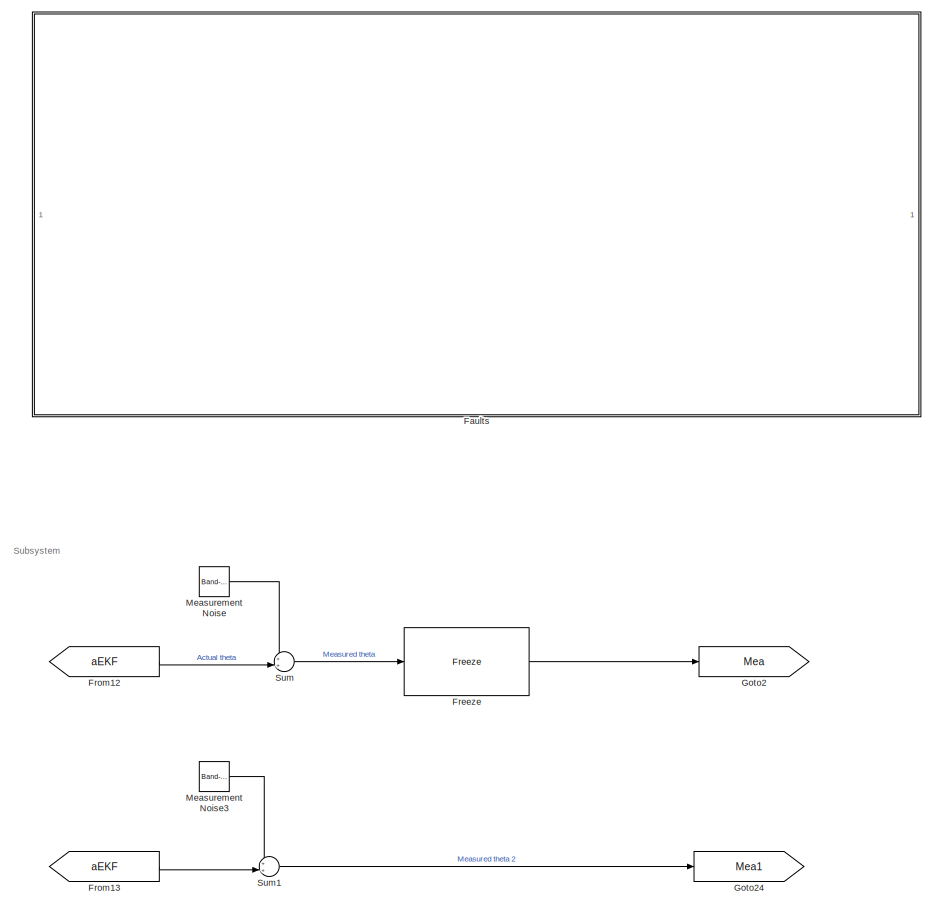
[diagram: root canvas - part 1/9, top center region]
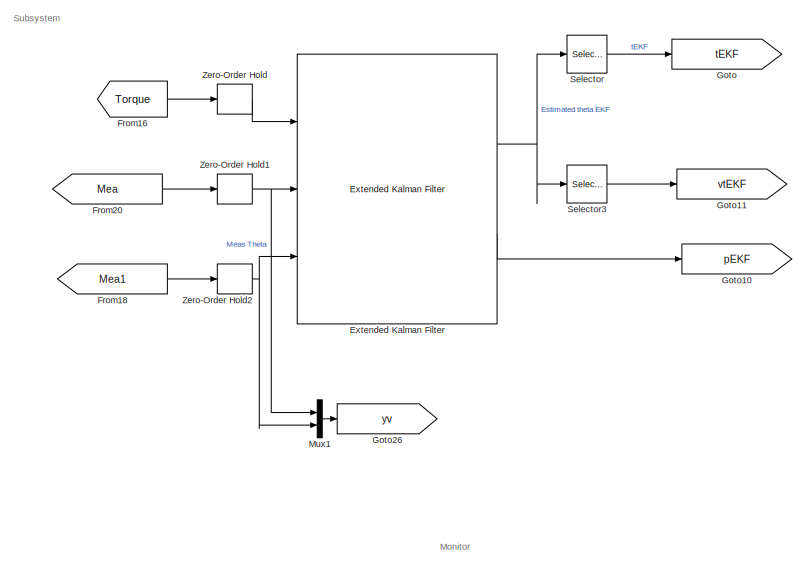
[diagram: root canvas - part 2/9, top right region]
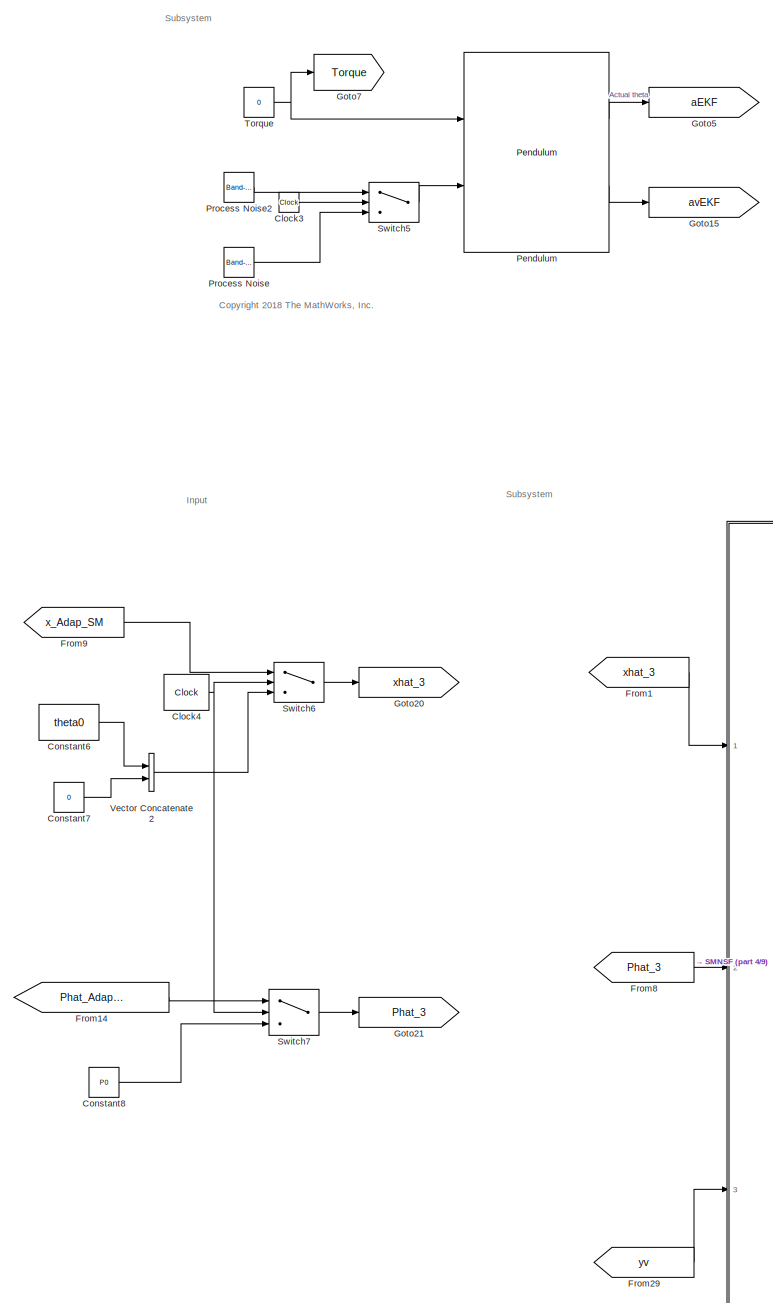
[diagram: root canvas - part 3/9, middle left region]
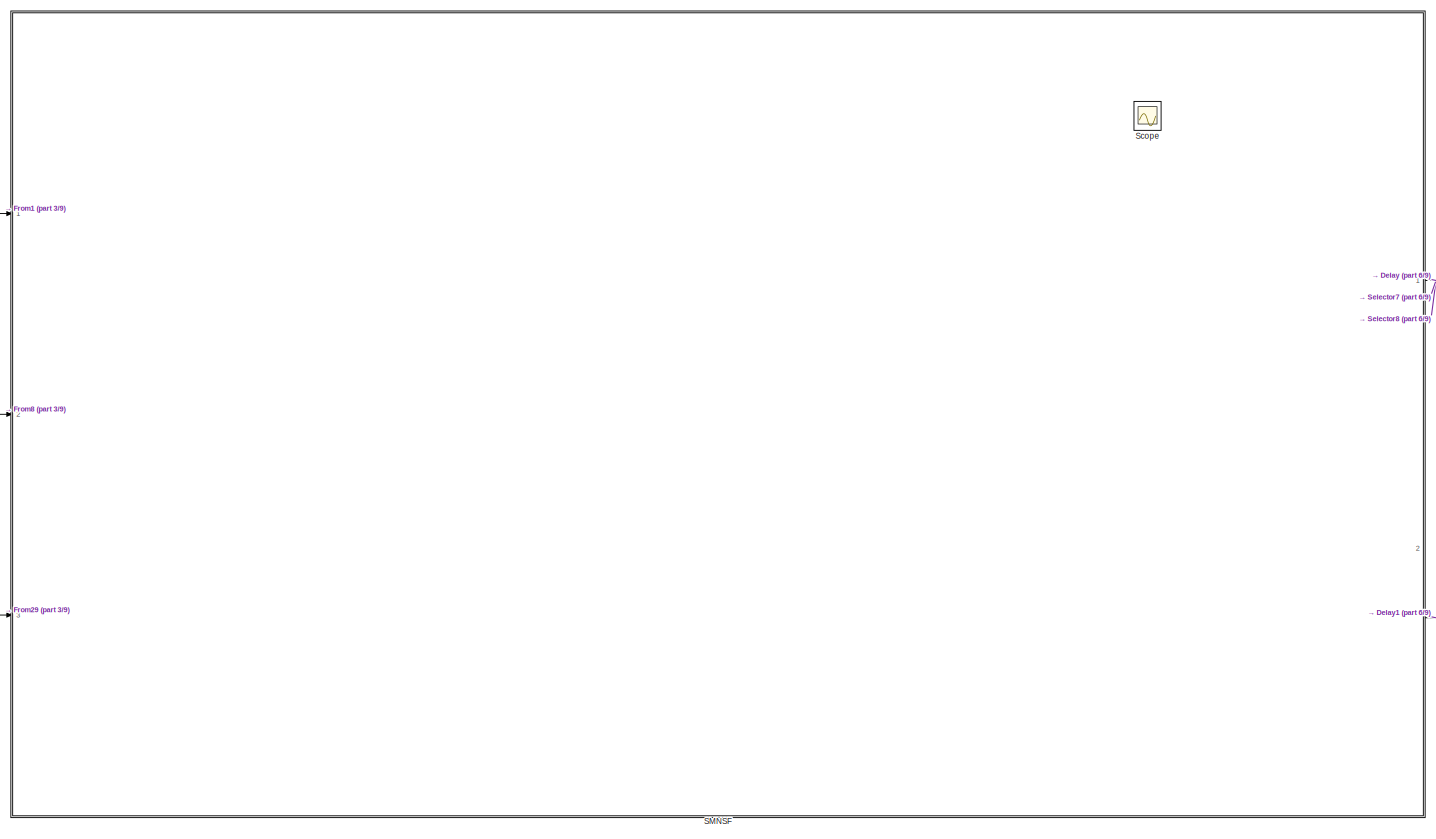
[diagram: root canvas - part 4/9, central region]
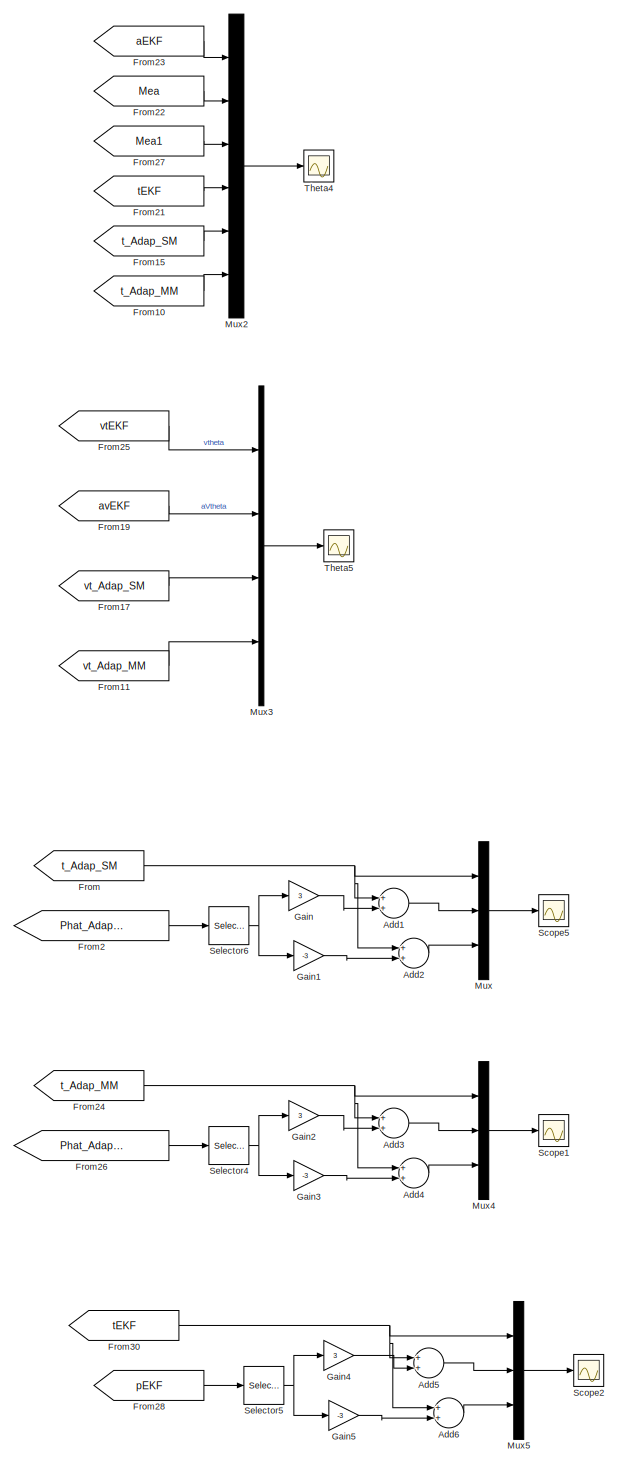
[diagram: root canvas - part 5/9, middle right region]
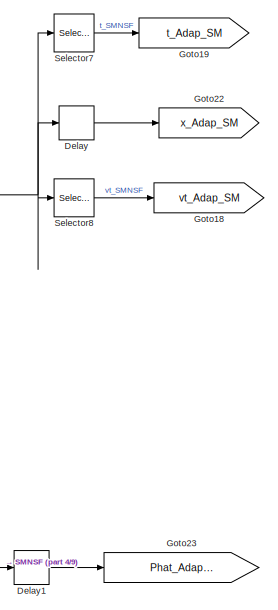
[diagram: root canvas - part 6/9, middle right region]
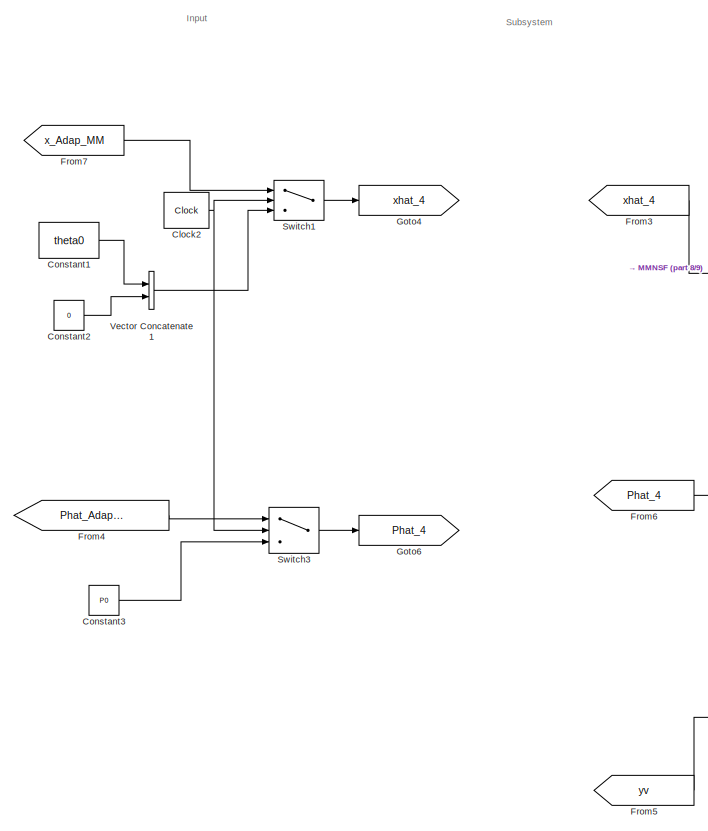
[diagram: root canvas - part 7/9, bottom left region]
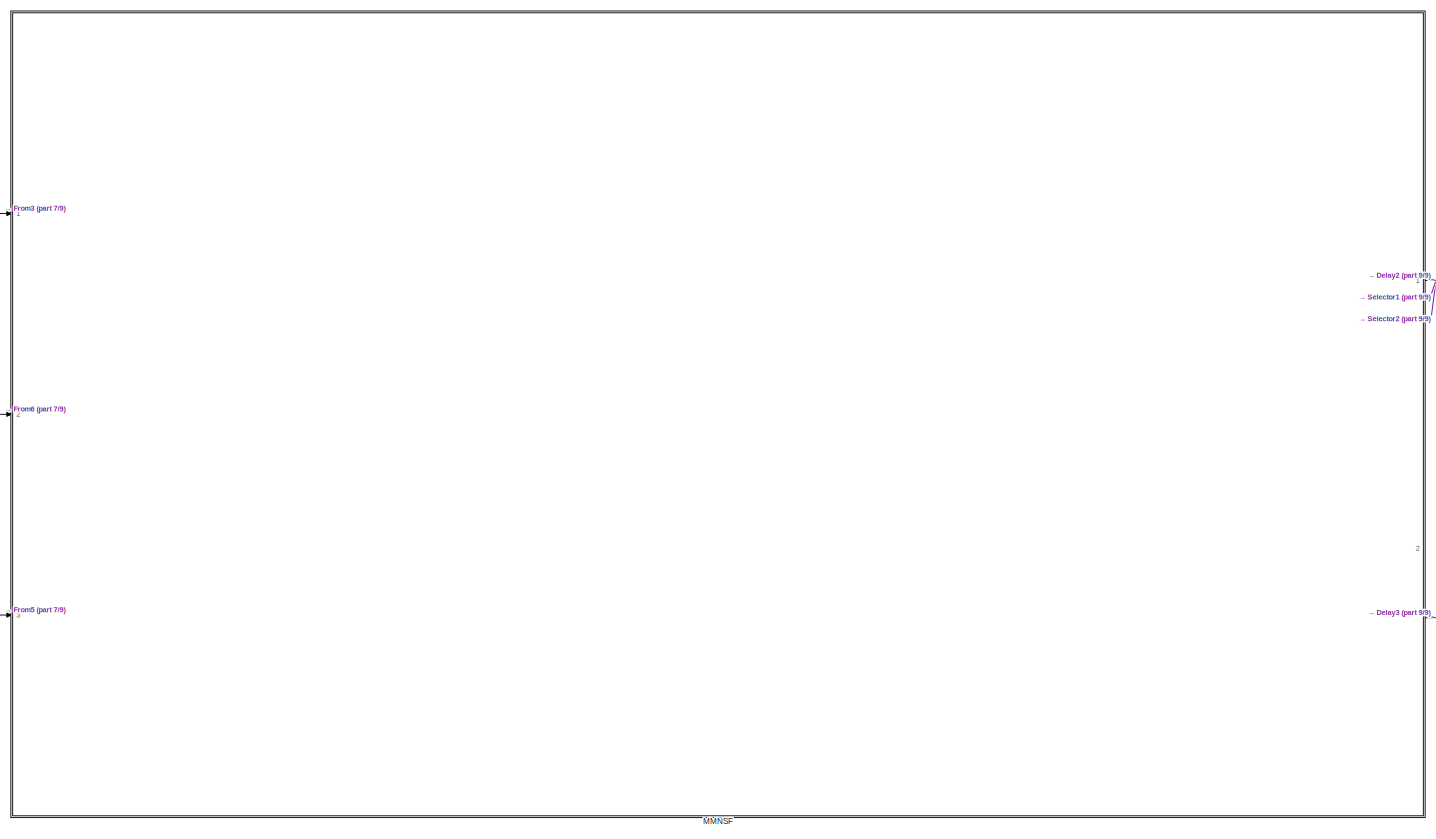
[diagram: root canvas - part 8/9, bottom center region]
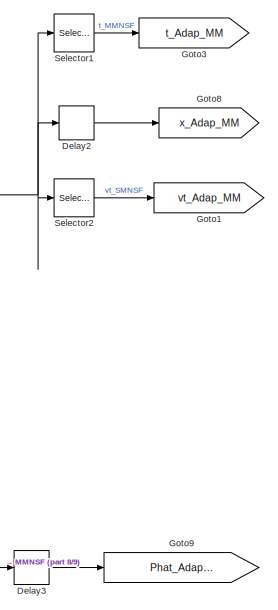
[diagram: root canvas - part 9/9, bottom right region]
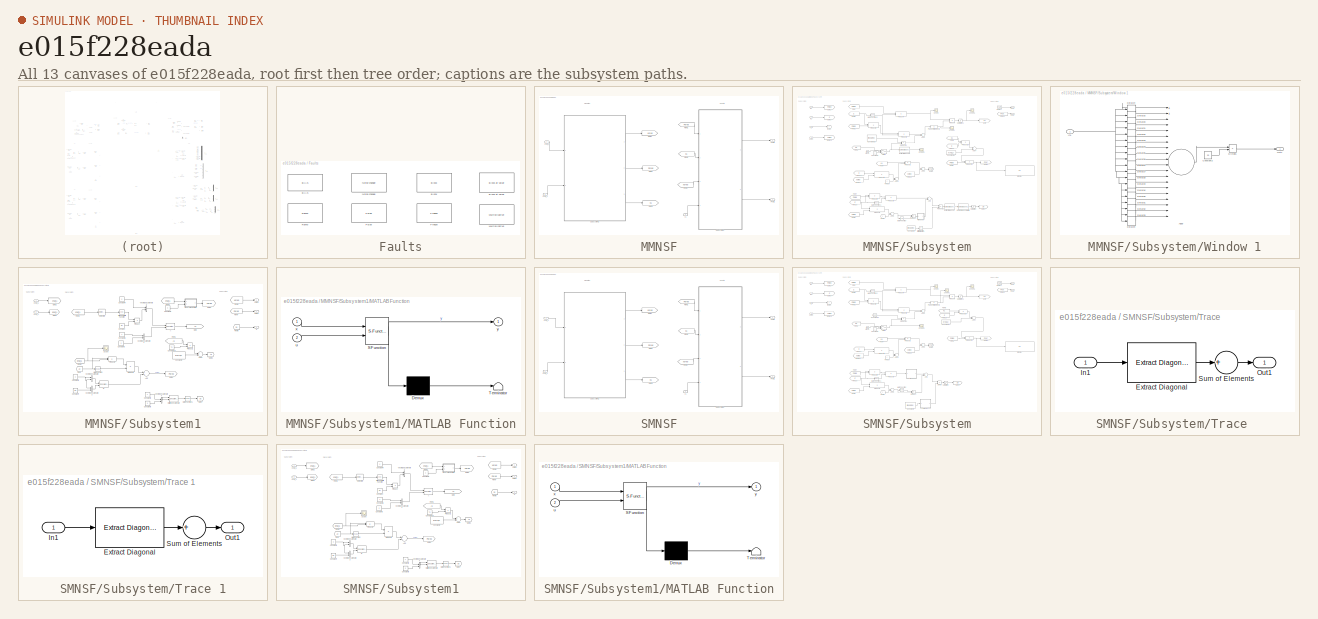
[diagram: thumbnail index - all 13 canvases of the model, root first then tree order]
MODEL slx_e015f228eada
KIND model
CONFIG AbsTol = auto
CONFIG EnableMultiTasking = off
CONFIG FixedStep = .01
CONFIG MaxStep = auto
CONFIG MinStep = auto
CONFIG RelTol = 1e-3
CONFIG SampleTimeConstraint = Unconstrained
CONFIG Solver = FixedStepAuto
CONFIG SolverName = FixedStepAuto
CONFIG StartTime = 0.0
CONFIG StopTime = 30
BLOCK [Sum] Add1
  InputSameDT = off
  OutDataTypeStr = Inherit: Inherit via internal rule
  Ports = [2, 1]
  SaturateOnIntegerOverflow = off
BLOCK [Sum] Add2
  InputSameDT = off
  OutDataTypeStr = Inherit: Inherit via internal rule
  Ports = [2, 1]
  SaturateOnIntegerOverflow = off
BLOCK [Sum] Add3
  InputSameDT = off
  OutDataTypeStr = Inherit: Inherit via internal rule
  Ports = [2, 1]
  SaturateOnIntegerOverflow = off
BLOCK [Sum] Add4
  InputSameDT = off
  OutDataTypeStr = Inherit: Inherit via internal rule
  Ports = [2, 1]
  SaturateOnIntegerOverflow = off
BLOCK [Sum] Add5
  InputSameDT = off
  OutDataTypeStr = Inherit: Inherit via internal rule
  Ports = [2, 1]
  SaturateOnIntegerOverflow = off
BLOCK [Sum] Add6
  InputSameDT = off
  OutDataTypeStr = Inherit: Inherit via internal rule
  Ports = [2, 1]
  SaturateOnIntegerOverflow = off
BLOCK [Clock] Clock2
  Decimation = 1000
  DisplayTime = on
BLOCK [Clock] Clock3
BLOCK [Clock] Clock4
  Decimation = 1000
  DisplayTime = on
BLOCK [Constant] Constant1
  Value = theta0
BLOCK [Constant] Constant2
  Value = 0
BLOCK [Constant] Constant3
  Value = P0
BLOCK [Constant] Constant6
  Value = theta0
BLOCK [Constant] Constant7
  Value = 0
BLOCK [Constant] Constant8
  Value = P0
BLOCK [Delay] Delay
  DelayLength = 1
  InputPortMap = u0
  Ports = [1, 1]
BLOCK [Delay] Delay1
  DelayLength = 1
  InputPortMap = u0
  Ports = [1, 1]
BLOCK [Delay] Delay2
  DelayLength = 1
  InputPortMap = u0
  Ports = [1, 1]
BLOCK [Delay] Delay3
  DelayLength = 1
  InputPortMap = u0
  Ports = [1, 1]
BLOCK [Reference] Extended Kalman Filter  REF=sharedTrackingLibrary/Extended Kalman Filter
  Ports = [3, 2]
  SourceBlock = sharedTrackingLibrary/Extended Kalman Filter
  SourceProductBaseCode = CT
  SourceProductName = Control System Toolbox
  SourceType = Extended Kalman Filter
BLOCK [SubSystem] Faults
  Ports = []
  RequestExecContextInheritance = off
BLOCK [Reference] Faults/BIAS  REF=Bias/BIAS
  Ports = [1, 1]
  SourceBlock = Bias/BIAS
BLOCK [Reference] Faults/Block  REF=Bias/Block
  Ports = [1, 1]
  SourceBlock = Bias/Block
BLOCK [Reference] Faults/Block at value  REF=Bias/Block at value
  Ports = [1, 1]
  SourceBlock = Bias/Block at value
BLOCK [Reference] Faults/Freeze  REF=Bias/Freeze
  Ports = [1, 1]
  SourceBlock = Bias/Freeze
BLOCK [Reference] Faults/Multiplicative  REF=Bias/Multiplicative
  Ports = [1, 1]
  SourceBlock = Bias/Multiplicative
BLOCK [Reference] Faults/Noise change  REF=Bias/Noise change
  Ports = [1, 1]
  SourceBlock = Bias/Noise change
BLOCK [Reference] Faults/Pulse  REF=Bias/Pulse
  Ports = [1, 1]
  SourceBlock = Bias/Pulse
BLOCK [Reference] Faults/Ramp  REF=Bias/Ramp
  Ports = [1, 1]
  SourceBlock = Bias/Ramp
BLOCK [Reference] Freeze  REF=Bias/Freeze
  Ports = [1, 1]
  SourceBlock = Bias/Freeze
BLOCK [From] From
  GotoTag = t_Adap_SM
BLOCK [From] From1
  GotoTag = xhat_3
BLOCK [From] From10
  GotoTag = t_Adap_MM
BLOCK [From] From11
  GotoTag = vt_Adap_MM
BLOCK [From] From12
  GotoTag = aEKF
BLOCK [From] From13
  GotoTag = aEKF
BLOCK [From] From14
  GotoTag = Phat_Adap_SM
BLOCK [From] From15
  GotoTag = t_Adap_SM
BLOCK [From] From16
  GotoTag = Torque
BLOCK [From] From17
  GotoTag = vt_Adap_SM
BLOCK [From] From18
  GotoTag = Mea1
BLOCK [From] From19
  GotoTag = avEKF
BLOCK [From] From2
  GotoTag = Phat_Adap_SM
BLOCK [From] From20
  GotoTag = Mea
BLOCK [From] From21
  GotoTag = tEKF
BLOCK [From] From22
  GotoTag = Mea
BLOCK [From] From23
  GotoTag = aEKF
BLOCK [From] From24
  GotoTag = t_Adap_MM
BLOCK [From] From25
  GotoTag = vtEKF
BLOCK [From] From26
  GotoTag = Phat_Adap_MM
BLOCK [From] From27
  GotoTag = Mea1
BLOCK [From] From28
  GotoTag = pEKF
BLOCK [From] From29
  GotoTag = yv
BLOCK [From] From3
  GotoTag = xhat_4
BLOCK [From] From30
  GotoTag = tEKF
BLOCK [From] From4
  GotoTag = Phat_Adap_MM
BLOCK [From] From5
  GotoTag = yv
BLOCK [From] From6
  GotoTag = Phat_4
BLOCK [From] From7
  GotoTag = x_Adap_MM
BLOCK [From] From8
  GotoTag = Phat_3
BLOCK [From] From9
  GotoTag = x_Adap_SM
BLOCK [Gain] Gain
  Gain = 3
  OutDataTypeStr = Inherit: Inherit via internal rule
  ParamDataTypeStr = Inherit: Inherit via internal rule
  SaturateOnIntegerOverflow = off
BLOCK [Gain] Gain1
  Gain = -3
  OutDataTypeStr = Inherit: Inherit via internal rule
  ParamDataTypeStr = Inherit: Inherit via internal rule
  SaturateOnIntegerOverflow = off
BLOCK [Gain] Gain2
  Gain = 3
  OutDataTypeStr = Inherit: Inherit via internal rule
  ParamDataTypeStr = Inherit: Inherit via internal rule
  SaturateOnIntegerOverflow = off
BLOCK [Gain] Gain3
  Gain = -3
  OutDataTypeStr = Inherit: Inherit via internal rule
  ParamDataTypeStr = Inherit: Inherit via internal rule
  SaturateOnIntegerOverflow = off
BLOCK [Gain] Gain4
  Gain = 3
  OutDataTypeStr = Inherit: Inherit via internal rule
  ParamDataTypeStr = Inherit: Inherit via internal rule
  SaturateOnIntegerOverflow = off
BLOCK [Gain] Gain5
  Gain = -3
  OutDataTypeStr = Inherit: Inherit via internal rule
  ParamDataTypeStr = Inherit: Inherit via internal rule
  SaturateOnIntegerOverflow = off
BLOCK [Goto] Goto
  GotoTag = tEKF
BLOCK [Goto] Goto1
  GotoTag = vt_Adap_MM
BLOCK [Goto] Goto10
  GotoTag = pEKF
BLOCK [Goto] Goto11
  GotoTag = vtEKF
BLOCK [Goto] Goto15
  GotoTag = avEKF
BLOCK [Goto] Goto18
  GotoTag = vt_Adap_SM
BLOCK [Goto] Goto19
  GotoTag = t_Adap_SM
BLOCK [Goto] Goto2
  GotoTag = Mea
BLOCK [Goto] Goto20
  GotoTag = xhat_3
BLOCK [Goto] Goto21
  GotoTag = Phat_3
BLOCK [Goto] Goto22
  GotoTag = x_Adap_SM
BLOCK [Goto] Goto23
  GotoTag = Phat_Adap_SM
BLOCK [Goto] Goto24
  GotoTag = Mea1
BLOCK [Goto] Goto26
  GotoTag = yv
BLOCK [Goto] Goto3
  GotoTag = t_Adap_MM
BLOCK [Goto] Goto4
  GotoTag = xhat_4
BLOCK [Goto] Goto5
  GotoTag = aEKF
BLOCK [Goto] Goto6
  GotoTag = Phat_4
BLOCK [Goto] Goto7
  GotoTag = Torque
BLOCK [Goto] Goto8
  GotoTag = x_Adap_MM
BLOCK [Goto] Goto9
  GotoTag = Phat_Adap_MM
BLOCK [SubSystem] MMNSF
  Ports = [3, 2]
  RequestExecContextInheritance = off
BLOCK [From] MMNSF/From1
  GotoTag = Ppred
BLOCK [From] MMNSF/From2
  GotoTag = C1
BLOCK [From] MMNSF/From3
  GotoTag = xpred
BLOCK [Goto] MMNSF/Goto1
  GotoTag = Ppred
BLOCK [Goto] MMNSF/Goto3
  GotoTag = C1
BLOCK [Goto] MMNSF/Goto4
  GotoTag = xpred
BLOCK [Outport] MMNSF/Phat1
  IconDisplay = Port number
  Port = 2
BLOCK [Inport] MMNSF/Phat_1
  IconDisplay = Port number
  Port = 2
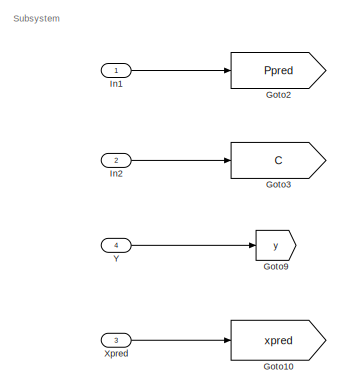
[diagram: MMNSF/Subsystem - part 1/4, top left region]
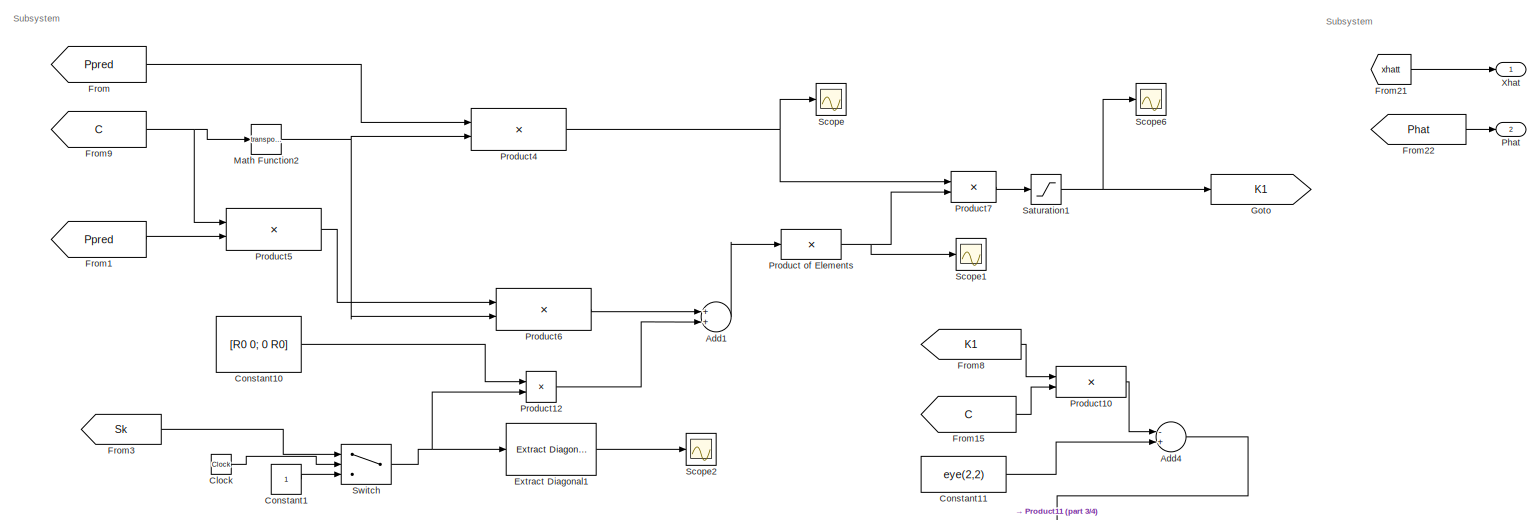
[diagram: MMNSF/Subsystem - part 2/4, full width, top band]
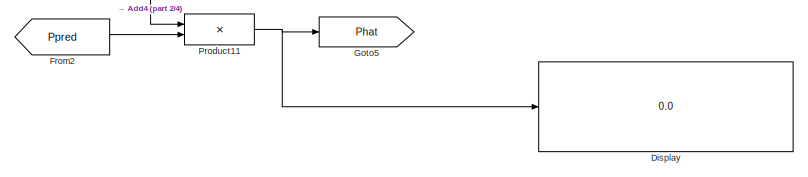
[diagram: MMNSF/Subsystem - part 3/4, middle right region]
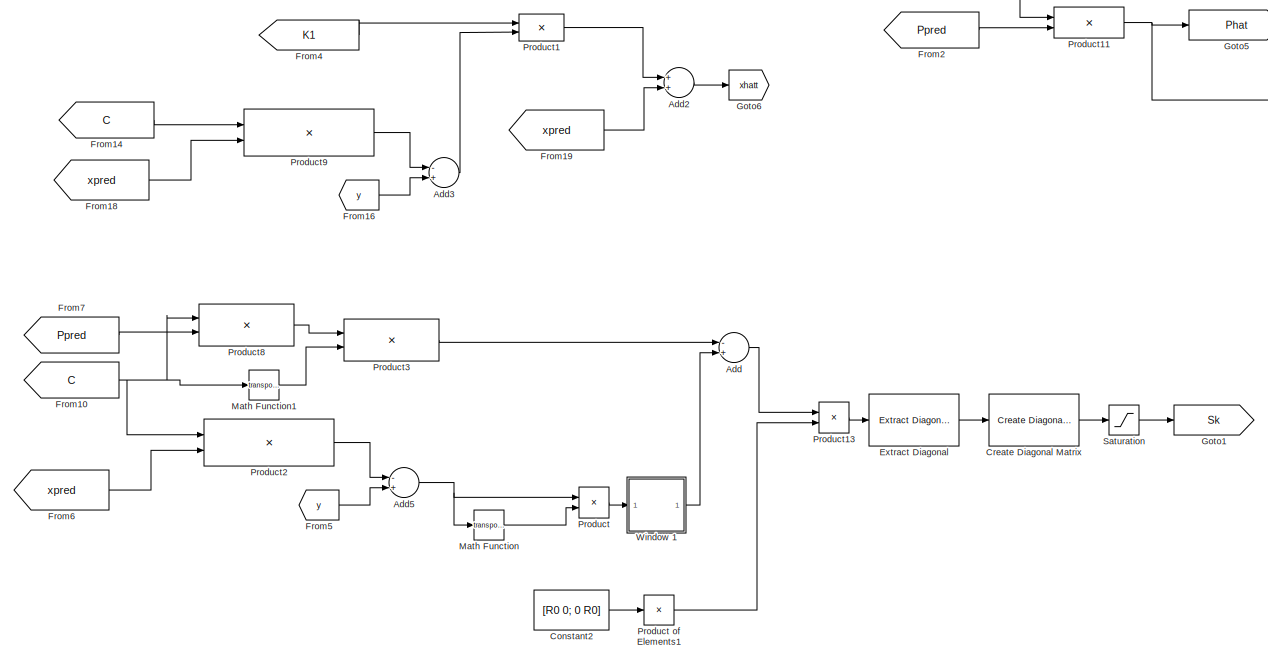
[diagram: MMNSF/Subsystem - part 4/4, bottom center region]
BLOCK [SubSystem] MMNSF/Subsystem
  Ports = [4, 2]
  RequestExecContextInheritance = off
BLOCK [Sum] MMNSF/Subsystem/Add
  InputSameDT = off
  Inputs = -+
  OutDataTypeStr = Inherit: Inherit via internal rule
  Ports = [2, 1]
  SaturateOnIntegerOverflow = off
BLOCK [Sum] MMNSF/Subsystem/Add1
  InputSameDT = off
  OutDataTypeStr = Inherit: Inherit via internal rule
  Ports = [2, 1]
  SaturateOnIntegerOverflow = off
BLOCK [Sum] MMNSF/Subsystem/Add2
  InputSameDT = off
  OutDataTypeStr = Inherit: Inherit via internal rule
  Ports = [2, 1]
  SaturateOnIntegerOverflow = off
BLOCK [Sum] MMNSF/Subsystem/Add3
  InputSameDT = off
  Inputs = -+
  OutDataTypeStr = Inherit: Inherit via internal rule
  Ports = [2, 1]
  SaturateOnIntegerOverflow = off
BLOCK [Sum] MMNSF/Subsystem/Add4
  InputSameDT = off
  Inputs = -+
  OutDataTypeStr = Inherit: Inherit via internal rule
  Ports = [2, 1]
  SaturateOnIntegerOverflow = off
BLOCK [Sum] MMNSF/Subsystem/Add5
  InputSameDT = off
  Inputs = -+
  OutDataTypeStr = Inherit: Inherit via internal rule
  Ports = [2, 1]
  SaturateOnIntegerOverflow = off
BLOCK [Clock] MMNSF/Subsystem/Clock
BLOCK [Constant] MMNSF/Subsystem/Constant1
BLOCK [Constant] MMNSF/Subsystem/Constant10
  Value = [R0 0; 0 R0]
BLOCK [Constant] MMNSF/Subsystem/Constant11
  Value = eye(2,2)
BLOCK [Constant] MMNSF/Subsystem/Constant2
  Value = [R0 0; 0 R0]
BLOCK [Reference] MMNSF/Subsystem/Create Diagonal Matrix  REF=dspmtrx3/Create Diagonal
Matrix
  Ports = [1, 1]
  SourceBlock = dspmtrx3/Create Diagonal\nMatrix
  SourceProductBaseCode = DS
  SourceProductName = DSP System Toolbox
  SourceType = Create Diagonal Matrix
BLOCK [Display] MMNSF/Subsystem/Display
  Decimation = 1
  Ports = [1]
BLOCK [Reference] MMNSF/Subsystem/Extract Diagonal  REF=dspmtrx3/Extract Diagonal
  Ports = [1, 1]
  SourceBlock = dspmtrx3/Extract Diagonal
  SourceProductBaseCode = DS
  SourceProductName = DSP System Toolbox
  SourceType = Extract Diagonal
BLOCK [Reference] MMNSF/Subsystem/Extract Diagonal1  REF=dspmtrx3/Extract Diagonal
  Ports = [1, 1]
  SourceBlock = dspmtrx3/Extract Diagonal
  SourceProductBaseCode = DS
  SourceProductName = DSP System Toolbox
  SourceType = Extract Diagonal
BLOCK [From] MMNSF/Subsystem/From
  GotoTag = Ppred
BLOCK [From] MMNSF/Subsystem/From1
  GotoTag = Ppred
BLOCK [From] MMNSF/Subsystem/From10
  GotoTag = C
BLOCK [From] MMNSF/Subsystem/From14
  GotoTag = C
BLOCK [From] MMNSF/Subsystem/From15
  GotoTag = C
BLOCK [From] MMNSF/Subsystem/From16
  GotoTag = y
BLOCK [From] MMNSF/Subsystem/From18
  GotoTag = xpred
BLOCK [From] MMNSF/Subsystem/From19
  GotoTag = xpred
BLOCK [From] MMNSF/Subsystem/From2
  GotoTag = Ppred
BLOCK [From] MMNSF/Subsystem/From21
  GotoTag = xhatt
BLOCK [From] MMNSF/Subsystem/From22
  GotoTag = Phat
BLOCK [From] MMNSF/Subsystem/From3
  GotoTag = Sk
BLOCK [From] MMNSF/Subsystem/From4
  GotoTag = K1
BLOCK [From] MMNSF/Subsystem/From5
  GotoTag = y
BLOCK [From] MMNSF/Subsystem/From6
  GotoTag = xpred
BLOCK [From] MMNSF/Subsystem/From7
  GotoTag = Ppred
BLOCK [From] MMNSF/Subsystem/From8
  GotoTag = K1
BLOCK [From] MMNSF/Subsystem/From9
  GotoTag = C
BLOCK [Goto] MMNSF/Subsystem/Goto
  GotoTag = K1
BLOCK [Goto] MMNSF/Subsystem/Goto1
  GotoTag = Sk
BLOCK [Goto] MMNSF/Subsystem/Goto10
  GotoTag = xpred
BLOCK [Goto] MMNSF/Subsystem/Goto2
  GotoTag = Ppred
BLOCK [Goto] MMNSF/Subsystem/Goto3
  GotoTag = C
BLOCK [Goto] MMNSF/Subsystem/Goto5
  GotoTag = Phat
BLOCK [Goto] MMNSF/Subsystem/Goto6
  GotoTag = xhatt
BLOCK [Goto] MMNSF/Subsystem/Goto9
  GotoTag = y
BLOCK [Inport] MMNSF/Subsystem/In1
  IconDisplay = Port number
BLOCK [Inport] MMNSF/Subsystem/In2
  IconDisplay = Port number
  Port = 2
BLOCK [Math] MMNSF/Subsystem/Math Function
  Operator = transpose
  Ports = [1, 1]
BLOCK [Math] MMNSF/Subsystem/Math Function1
  Operator = transpose
  Ports = [1, 1]
BLOCK [Math] MMNSF/Subsystem/Math Function2
  Operator = transpose
  Ports = [1, 1]
BLOCK [Outport] MMNSF/Subsystem/Phat 
  IconDisplay = Port number
  Port = 2
BLOCK [Product] MMNSF/Subsystem/Product
  InputSameDT = off
  Multiplication = Matrix(*)
  OutDataTypeStr = Inherit: Inherit via internal rule
  Ports = [2, 1]
  RndMeth = Floor
  SaturateOnIntegerOverflow = off
BLOCK [Product] MMNSF/Subsystem/Product of Elements
  InputSameDT = off
  Inputs = /
  Multiplication = Matrix(*)
  OutDataTypeStr = Inherit: Inherit via internal rule
  Ports = [1, 1]
  RndMeth = Floor
  SaturateOnIntegerOverflow = off
BLOCK [Product] MMNSF/Subsystem/Product of Elements1
  InputSameDT = off
  Inputs = /
  Multiplication = Matrix(*)
  OutDataTypeStr = Inherit: Inherit via internal rule
  Ports = [1, 1]
  RndMeth = Floor
  SaturateOnIntegerOverflow = off
BLOCK [Product] MMNSF/Subsystem/Product1
  InputSameDT = off
  Multiplication = Matrix(*)
  OutDataTypeStr = Inherit: Inherit via internal rule
  Ports = [2, 1]
  RndMeth = Floor
  SaturateOnIntegerOverflow = off
BLOCK [Product] MMNSF/Subsystem/Product10
  InputSameDT = off
  Multiplication = Matrix(*)
  OutDataTypeStr = Inherit: Inherit via internal rule
  Ports = [2, 1]
  RndMeth = Floor
  SaturateOnIntegerOverflow = off
BLOCK [Product] MMNSF/Subsystem/Product11
  InputSameDT = off
  Multiplication = Matrix(*)
  OutDataTypeStr = Inherit: Inherit via internal rule
  Ports = [2, 1]
  RndMeth = Floor
  SaturateOnIntegerOverflow = off
BLOCK [Product] MMNSF/Subsystem/Product12
  InputSameDT = off
  OutDataTypeStr = Inherit: Inherit via internal rule
  Ports = [2, 1]
  RndMeth = Floor
  SaturateOnIntegerOverflow = off
BLOCK [Product] MMNSF/Subsystem/Product13
  InputSameDT = off
  OutDataTypeStr = Inherit: Inherit via internal rule
  Ports = [2, 1]
  RndMeth = Floor
  SaturateOnIntegerOverflow = off
BLOCK [Product] MMNSF/Subsystem/Product2
  InputSameDT = off
  Multiplication = Matrix(*)
  OutDataTypeStr = Inherit: Inherit via internal rule
  Ports = [2, 1]
  RndMeth = Floor
  SaturateOnIntegerOverflow = off
BLOCK [Product] MMNSF/Subsystem/Product3
  InputSameDT = off
  Multiplication = Matrix(*)
  OutDataTypeStr = Inherit: Inherit via internal rule
  Ports = [2, 1]
  RndMeth = Floor
  SaturateOnIntegerOverflow = off
BLOCK [Product] MMNSF/Subsystem/Product4
  InputSameDT = off
  Multiplication = Matrix(*)
  OutDataTypeStr = Inherit: Inherit via internal rule
  Ports = [2, 1]
  RndMeth = Floor
  SaturateOnIntegerOverflow = off
BLOCK [Product] MMNSF/Subsystem/Product5
  InputSameDT = off
  Multiplication = Matrix(*)
  OutDataTypeStr = Inherit: Inherit via internal rule
  Ports = [2, 1]
  RndMeth = Floor
  SaturateOnIntegerOverflow = off
BLOCK [Product] MMNSF/Subsystem/Product6
  InputSameDT = off
  Multiplication = Matrix(*)
  OutDataTypeStr = Inherit: Inherit via internal rule
  Ports = [2, 1]
  RndMeth = Floor
  SaturateOnIntegerOverflow = off
BLOCK [Product] MMNSF/Subsystem/Product7
  InputSameDT = off
  Multiplication = Matrix(*)
  OutDataTypeStr = Inherit: Inherit via internal rule
  Ports = [2, 1]
  RndMeth = Floor
  SaturateOnIntegerOverflow = off
BLOCK [Product] MMNSF/Subsystem/Product8
  InputSameDT = off
  Multiplication = Matrix(*)
  OutDataTypeStr = Inherit: Inherit via internal rule
  Ports = [2, 1]
  RndMeth = Floor
  SaturateOnIntegerOverflow = off
BLOCK [Product] MMNSF/Subsystem/Product9
  InputSameDT = off
  Multiplication = Matrix(*)
  OutDataTypeStr = Inherit: Inherit via internal rule
  Ports = [2, 1]
  RndMeth = Floor
  SaturateOnIntegerOverflow = off
BLOCK [Saturate] MMNSF/Subsystem/Saturation
  InputPortMap = u0
  LowerLimit = 1
  Ports = [1, 1]
  UpperLimit = 1000
BLOCK [Saturate] MMNSF/Subsystem/Saturation1
  InputPortMap = u0
  LowerLimit = 0
  Ports = [1, 1]
  UpperLimit = 1
BLOCK [Scope] MMNSF/Subsystem/Scope
  Floating = off
  NumInputPorts = 1
  Ports = [1]
  ScopeSpecificationString = Simulink.scopes.TimeScopeBlockCfg('CurrentConfiguration', extmgr.ConfigurationSet(extmgr.Configuration('Core','General UI',true),extmgr.Configuration('Core','Source UI',true),extmgr.Configuration('Sources','WiredSimulink',true,'DataLoggingVariableName','ScopeData3'),extmgr.Configuration('Visuals','Time Domain',true,'SerializedDisplays',{struct('MinYLimReal','-2.69839','MaxYLimReal','11.41204','YLa...<+1411ch>
BLOCK [Scope] MMNSF/Subsystem/Scope1
  Floating = off
  NumInputPorts = 1
  Ports = [1]
  ScopeSpecificationString = Simulink.scopes.TimeScopeBlockCfg('CurrentConfiguration', extmgr.ConfigurationSet(extmgr.Configuration('Core','General UI',true),extmgr.Configuration('Core','Source UI',true),extmgr.Configuration('Sources','WiredSimulink',true,'DataLoggingVariableName','ScopeData4'),extmgr.Configuration('Visuals','Time Domain',true,'SerializedDisplays',{struct('MinYLimReal','-20232.22125','MaxYLimReal','42446.7886...<+1408ch>
BLOCK [Scope] MMNSF/Subsystem/Scope2
  Floating = off
  NumInputPorts = 1
  Ports = [1]
  ScopeSpecificationString = Simulink.scopes.TimeScopeBlockCfg('CurrentConfiguration', extmgr.ConfigurationSet(extmgr.Configuration('Core','General UI',true),extmgr.Configuration('Core','Source UI',true),extmgr.Configuration('Sources','WiredSimulink',true,'DataLoggingVariableName','ScopeData6'),extmgr.Configuration('Visuals','Time Domain',true,'SerializedDisplays',{struct('MinYLimReal','-123.875','MaxYLimReal','1124.875','YLa...<+1924ch>
BLOCK [Scope] MMNSF/Subsystem/Scope6
  Floating = off
  NumInputPorts = 1
  Ports = [1]
  ScopeSpecificationString = Simulink.scopes.TimeScopeBlockCfg('CurrentConfiguration', extmgr.ConfigurationSet(extmgr.Configuration('Core','General UI',true),extmgr.Configuration('Core','Source UI',true),extmgr.Configuration('Sources','WiredSimulink',true,'DataLoggingVariableName','ScopeData15'),extmgr.Configuration('Visuals','Time Domain',true,'SerializedDisplays',{struct('MinYLimReal','-0.05682','MaxYLimReal','0.51137','YLa...<+1941ch>
BLOCK [Switch] MMNSF/Subsystem/Switch
  Criteria = u2 > Threshold
  InputSameDT = off
  SaturateOnIntegerOverflow = off
  Threshold = Ts
BLOCK [SubSystem] MMNSF/Subsystem/Window 1
  Ports = [1, 1]
  RequestExecContextInheritance = off
BLOCK [Sum] MMNSF/Subsystem/Window 1/Add9
  InputSameDT = off
  Inputs = 20
  OutDataTypeStr = Inherit: Inherit via internal rule
  Ports = [20, 1]
  SaturateOnIntegerOverflow = off
BLOCK [Constant] MMNSF/Subsystem/Window 1/Constant2
  Value = 20
BLOCK [Delay] MMNSF/Subsystem/Window 1/Delay14
  DelayLength = 1
  InputPortMap = u0
  Ports = [1, 1]
  SampleTime = Ts
BLOCK [Delay] MMNSF/Subsystem/Window 1/Delay15
  InputPortMap = u0
  Ports = [1, 1]
  SampleTime = Ts
BLOCK [Delay] MMNSF/Subsystem/Window 1/Delay16
  DelayLength = 14
  InputPortMap = u0
  Ports = [1, 1]
  SampleTime = Ts
BLOCK [Delay] MMNSF/Subsystem/Window 1/Delay17
  DelayLength = 11
  InputPortMap = u0
  Ports = [1, 1]
  SampleTime = Ts
BLOCK [Delay] MMNSF/Subsystem/Window 1/Delay18
  DelayLength = 12
  InputPortMap = u0
  Ports = [1, 1]
  SampleTime = Ts
BLOCK [Delay] MMNSF/Subsystem/Window 1/Delay19
  DelayLength = 13
  InputPortMap = u0
  Ports = [1, 1]
  SampleTime = Ts
BLOCK [Delay] MMNSF/Subsystem/Window 1/Delay20
  DelayLength = 3
  InputPortMap = u0
  Ports = [1, 1]
  SampleTime = Ts
BLOCK [Delay] MMNSF/Subsystem/Window 1/Delay21
  DelayLength = 4
  InputPortMap = u0
  Ports = [1, 1]
  SampleTime = Ts
BLOCK [Delay] MMNSF/Subsystem/Window 1/Delay22
  DelayLength = 5
  InputPortMap = u0
  Ports = [1, 1]
  SampleTime = Ts
BLOCK [Delay] MMNSF/Subsystem/Window 1/Delay23
  DelayLength = 6
  InputPortMap = u0
  Ports = [1, 1]
  SampleTime = Ts
BLOCK [Delay] MMNSF/Subsystem/Window 1/Delay24
  DelayLength = 7
  InputPortMap = u0
  Ports = [1, 1]
  SampleTime = Ts
BLOCK [Delay] MMNSF/Subsystem/Window 1/Delay25
  DelayLength = 8
  InputPortMap = u0
  Ports = [1, 1]
  SampleTime = Ts
BLOCK [Delay] MMNSF/Subsystem/Window 1/Delay26
  DelayLength = 9
  InputPortMap = u0
  Ports = [1, 1]
  SampleTime = Ts
BLOCK [Delay] MMNSF/Subsystem/Window 1/Delay27
  DelayLength = 10
  InputPortMap = u0
  Ports = [1, 1]
  SampleTime = Ts
BLOCK [Delay] MMNSF/Subsystem/Window 1/Delay30
  DelayLength = 15
  InputPortMap = u0
  Ports = [1, 1]
  SampleTime = Ts
BLOCK [Delay] MMNSF/Subsystem/Window 1/Delay31
  DelayLength = 16
  InputPortMap = u0
  Ports = [1, 1]
  SampleTime = Ts
BLOCK [Delay] MMNSF/Subsystem/Window 1/Delay32
  DelayLength = 17
  InputPortMap = u0
  Ports = [1, 1]
  SampleTime = Ts
BLOCK [Delay] MMNSF/Subsystem/Window 1/Delay33
  DelayLength = 18
  InputPortMap = u0
  Ports = [1, 1]
  SampleTime = Ts
BLOCK [Delay] MMNSF/Subsystem/Window 1/Delay34
  DelayLength = 19
  InputPortMap = u0
  Ports = [1, 1]
  SampleTime = Ts
BLOCK [Product] MMNSF/Subsystem/Window 1/Divide1
  InputSameDT = off
  Inputs = */
  OutDataTypeStr = Inherit: Inherit via internal rule
  Ports = [2, 1]
  RndMeth = Floor
  SaturateOnIntegerOverflow = off
BLOCK [Inport] MMNSF/Subsystem/Window 1/In1
  IconDisplay = Port number
BLOCK [Outport] MMNSF/Subsystem/Window 1/Out1
  IconDisplay = Port number
BLOCK [Outport] MMNSF/Subsystem/Xhat
  IconDisplay = Port number
  PortDimensions = [2,1]
BLOCK [Inport] MMNSF/Subsystem/Xpred
  IconDisplay = Port number
  Port = 3
BLOCK [Inport] MMNSF/Subsystem/Y 
  IconDisplay = Port number
  Port = 4
BLOCK [SubSystem] MMNSF/Subsystem1
  Ports = [2, 3]
  RequestExecContextInheritance = off
BLOCK [Concatenate] MMNSF/Subsystem1/A
  ConcatenateDimension = 2
  Mode = Multidimensional array
  Ports = [2, 1]
BLOCK [Sum] MMNSF/Subsystem1/Add
  InputSameDT = off
  OutDataTypeStr = Inherit: Inherit via internal rule
  Ports = [2, 1]
  SaturateOnIntegerOverflow = off
BLOCK [Sum] MMNSF/Subsystem1/Add1
  InputSameDT = off
  OutDataTypeStr = Inherit: Inherit via internal rule
  Ports = [2, 1]
  SaturateOnIntegerOverflow = off
BLOCK [Outport] MMNSF/Subsystem1/C 
  IconDisplay = Port number
  Port = 3
BLOCK [Constant] MMNSF/Subsystem1/Constant
  Value = -g/l
BLOCK [Constant] MMNSF/Subsystem1/Constant1
  Value = 0
BLOCK [Constant] MMNSF/Subsystem1/Constant10
  Value = Ts
BLOCK [Constant] MMNSF/Subsystem1/Constant2
  Value = eye(2,2)
BLOCK [Constant] MMNSF/Subsystem1/Constant3
  Value = 0
BLOCK [Constant] MMNSF/Subsystem1/Constant4
  Value = 0
BLOCK [Constant] MMNSF/Subsystem1/Constant5
BLOCK [Constant] MMNSF/Subsystem1/Constant6
  Value = 0
BLOCK [Constant] MMNSF/Subsystem1/Constant7
  Value = Q0
BLOCK [Constant] MMNSF/Subsystem1/Constant8
BLOCK [Constant] MMNSF/Subsystem1/Constant9
  Value = 0
BLOCK [From] MMNSF/Subsystem1/From
  GotoTag = Ak
BLOCK [From] MMNSF/Subsystem1/From1
  GotoTag = A1
BLOCK [From] MMNSF/Subsystem1/From2
  GotoTag = xhat_1
BLOCK [From] MMNSF/Subsystem1/From3
  GotoTag = xhat_1
BLOCK [From] MMNSF/Subsystem1/From4
  GotoTag = phat_1
BLOCK [From] MMNSF/Subsystem1/From6
  GotoTag = xpred
BLOCK [From] MMNSF/Subsystem1/From7
  GotoTag = Ppred
BLOCK [From] MMNSF/Subsystem1/From8
  GotoTag = Ck
BLOCK [Goto] MMNSF/Subsystem1/Goto
  GotoTag = A1
BLOCK [Goto] MMNSF/Subsystem1/Goto1
  GotoTag = Ak
BLOCK [Goto] MMNSF/Subsystem1/Goto2
  GotoTag = xhat_1
BLOCK [Goto] MMNSF/Subsystem1/Goto3
  GotoTag = phat_1
BLOCK [Goto] MMNSF/Subsystem1/Goto5
  GotoTag = xpred
BLOCK [Goto] MMNSF/Subsystem1/Goto6
  GotoTag = Ppred
BLOCK [Goto] MMNSF/Subsystem1/Goto7
  GotoTag = Ck
BLOCK [SubSystem] MMNSF/Subsystem1/MATLAB Function
  ErrorFcn = Stateflow.Translate.translate
  PermitHierarchicalResolution = ExplicitOnly
  Ports = [2, 1]
  RequestExecContextInheritance = off
  SFBlockType = MATLAB Function
  TreatAsAtomicUnit = on
BLOCK [Demux] MMNSF/Subsystem1/MATLAB Function/ Demux 
  Outputs = 1
  Ports = [1, 1]
BLOCK [S-Function] MMNSF/Subsystem1/MATLAB Function/ SFunction 
  EnableBusSupport = on
  FunctionName = sf_sfun
  PortCounts = [2 2]
  Ports = [2, 2]
  SFcnIsStateOwnerBlock = off
  SFunctionDeploymentMode = off
  Tag = Stateflow S-Function Kalman_Filter_Simulink_Example_SMNSF_MMNSF 1
BLOCK [Terminator] MMNSF/Subsystem1/MATLAB Function/ Terminator 
BLOCK [Inport] MMNSF/Subsystem1/MATLAB Function/u
  IconDisplay = Port number
  Port = 2
BLOCK [Inport] MMNSF/Subsystem1/MATLAB Function/x
  IconDisplay = Port number
BLOCK [Outport] MMNSF/Subsystem1/MATLAB Function/y
  IconDisplay = Port number
BLOCK [Math] MMNSF/Subsystem1/Math Function
  Operator = transpose
  Ports = [1, 1]
BLOCK [Math] MMNSF/Subsystem1/Math Function1
  Operator = transpose
  Ports = [1, 1]
BLOCK [Concatenate] MMNSF/Subsystem1/Matrix Concatenate
  ConcatenateDimension = 2
  Mode = Multidimensional array
  Ports = [2, 1]
BLOCK [Outport] MMNSF/Subsystem1/Ppred
  IconDisplay = Port number
  Port = 2
BLOCK [Product] MMNSF/Subsystem1/Product
  InputSameDT = off
  OutDataTypeStr = Inherit: Inherit via internal rule
  Ports = [2, 1]
  RndMeth = Floor
  SaturateOnIntegerOverflow = off
BLOCK [Product] MMNSF/Subsystem1/Product1
  InputSameDT = off
  OutDataTypeStr = Inherit: Inherit via internal rule
  Ports = [2, 1]
  RndMeth = Floor
  SaturateOnIntegerOverflow = off
BLOCK [Product] MMNSF/Subsystem1/Product2
  InputSameDT = off
  Multiplication = Matrix(*)
  OutDataTypeStr = Inherit: Inherit via internal rule
  Ports = [2, 1]
  RndMeth = Floor
  SaturateOnIntegerOverflow = off
BLOCK [Product] MMNSF/Subsystem1/Product3
  InputSameDT = off
  Multiplication = Matrix(*)
  OutDataTypeStr = Inherit: Inherit via internal rule
  Ports = [2, 1]
  RndMeth = Floor
  SaturateOnIntegerOverflow = off
BLOCK [Concatenate] MMNSF/Subsystem1/Q
  ConcatenateDimension = 2
  Mode = Multidimensional array
  Ports = [2, 1]
BLOCK [Scope] MMNSF/Subsystem1/Scope
  Floating = off
  NumInputPorts = 1
  Ports = [1]
  ScopeSpecificationString = Simulink.scopes.TimeScopeBlockCfg('CurrentConfiguration', extmgr.ConfigurationSet(extmgr.Configuration('Core','General UI',true),extmgr.Configuration('Core','Source UI',true),extmgr.Configuration('Sources','WiredSimulink',true,'DataLoggingVariableName','ScopeData1'),extmgr.Configuration('Visuals','Time Domain',true,'SerializedDisplays',{struct('MinYLimReal','-8.38219','MaxYLimReal','75.43968','YLa...<+1729ch>
BLOCK [Selector] MMNSF/Subsystem1/Selector2
  IndexOptions = Index vector (dialog)
  Indices = 1
  InputPortWidth = 2
  OutputSizes = 1
  Ports = [1, 1]
BLOCK [Trigonometry] MMNSF/Subsystem1/Trigonometric Function
  Operator = cos
  Ports = [1, 1]
BLOCK [Concatenate] MMNSF/Subsystem1/Vector Concatenate
  Ports = [2, 1]
BLOCK [Concatenate] MMNSF/Subsystem1/Vector Concatenate1
  Ports = [2, 1]
BLOCK [Concatenate] MMNSF/Subsystem1/Vector Concatenate2
  Ports = [2, 1]
BLOCK [Concatenate] MMNSF/Subsystem1/Vector Concatenate3
  Ports = [2, 1]
BLOCK [Concatenate] MMNSF/Subsystem1/Vector Concatenate4
  Ports = [2, 1]
BLOCK [Inport] MMNSF/Subsystem1/phat_1
  IconDisplay = Port number
  Port = 2
BLOCK [Inport] MMNSF/Subsystem1/xhat_1
  IconDisplay = Port number
BLOCK [Outport] MMNSF/Subsystem1/xpred
  IconDisplay = Port number
BLOCK [Outport] MMNSF/xhat1
  IconDisplay = Port number
BLOCK [Inport] MMNSF/xhat_1
  IconDisplay = Port number
BLOCK [Inport] MMNSF/y1
  IconDisplay = Port number
  Port = 3
BLOCK [Reference] Measurement Noise  REF=simulink/Sources/Band-Limited
White Noise
  Ports = [0, 1]
  SourceBlock = simulink/Sources/Band-Limited\nWhite Noise
  SourceProductBaseCode = SL
  SourceProductName = Simulink
  SourceType = Band-Limited White Noise.
BLOCK [Reference] Measurement Noise3  REF=simulink/Sources/Band-Limited
White Noise
  Ports = [0, 1]
  SourceBlock = simulink/Sources/Band-Limited\nWhite Noise
  SourceProductBaseCode = SL
  SourceProductName = Simulink
  SourceType = Band-Limited White Noise.
BLOCK [Mux] Mux
  DisplayOption = bar
  Inputs = 3
  Ports = [3, 1]
BLOCK [Mux] Mux1
  DisplayOption = bar
  Inputs = 2
  Ports = [2, 1]
BLOCK [Mux] Mux2
  DisplayOption = bar
  Inputs = 6
  Ports = [6, 1]
BLOCK [Mux] Mux3
  DisplayOption = bar
  Ports = [4, 1]
BLOCK [Mux] Mux4
  DisplayOption = bar
  Inputs = 3
  Ports = [3, 1]
BLOCK [Mux] Mux5
  DisplayOption = bar
  Inputs = 3
  Ports = [3, 1]
BLOCK [Reference] Pendulum  REF=Meldas_Library/Pendulum
  Ports = [2, 2]
  SourceBlock = Meldas_Library/Pendulum
BLOCK [Reference] Process Noise  REF=simulink/Sources/Band-Limited
White Noise
  Ports = [0, 1]
  SourceBlock = simulink/Sources/Band-Limited\nWhite Noise
  SourceProductBaseCode = SL
  SourceProductName = Simulink
  SourceType = Band-Limited White Noise.
BLOCK [Reference] Process Noise2  REF=simulink/Sources/Band-Limited
White Noise
  Ports = [0, 1]
  SourceBlock = simulink/Sources/Band-Limited\nWhite Noise
  SourceProductBaseCode = SL
  SourceProductName = Simulink
  SourceType = Band-Limited White Noise.
BLOCK [SubSystem] SMNSF
  Ports = [3, 2]
  RequestExecContextInheritance = off
BLOCK [From] SMNSF/From1
  GotoTag = Ppred
BLOCK [From] SMNSF/From2
  GotoTag = C1
BLOCK [From] SMNSF/From3
  GotoTag = xpred
BLOCK [Goto] SMNSF/Goto1
  GotoTag = Ppred
BLOCK [Goto] SMNSF/Goto3
  GotoTag = C1
BLOCK [Goto] SMNSF/Goto4
  GotoTag = xpred
BLOCK [Outport] SMNSF/Phat1
  IconDisplay = Port number
  Port = 2
BLOCK [Inport] SMNSF/Phat_1
  IconDisplay = Port number
  Port = 2
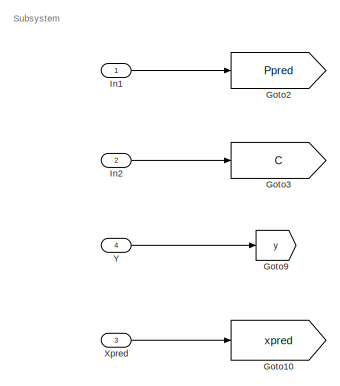
[diagram: SMNSF/Subsystem - part 1/4, top left region]
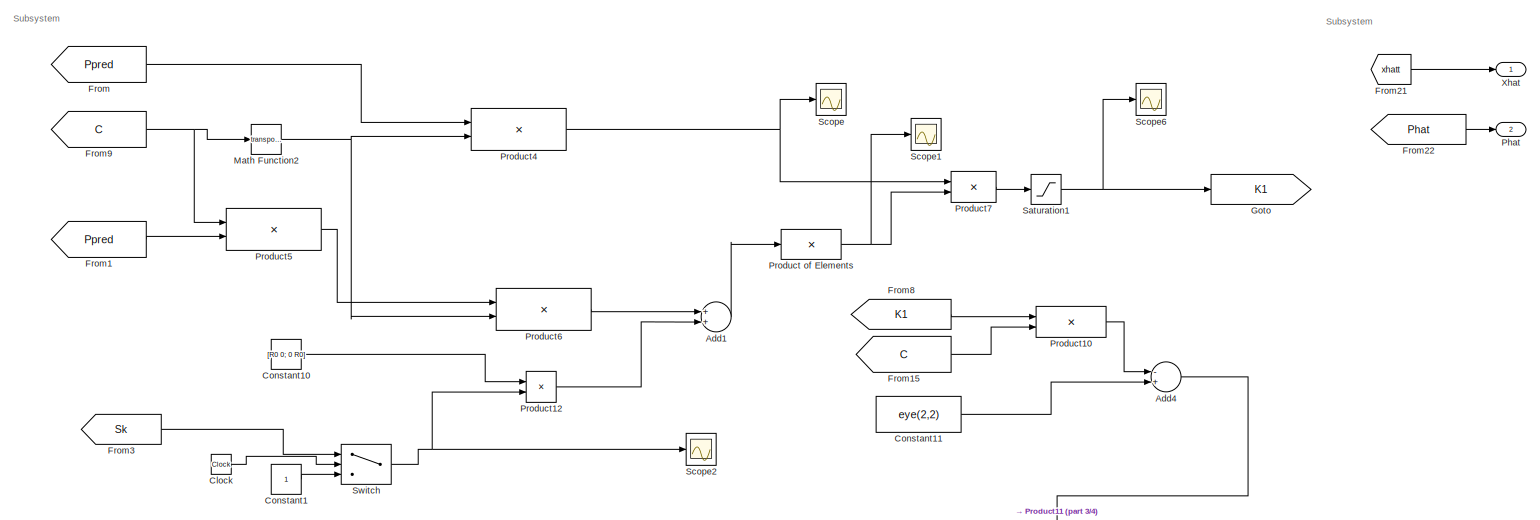
[diagram: SMNSF/Subsystem - part 2/4, full width, top band]
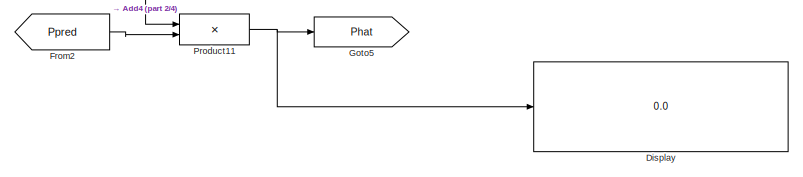
[diagram: SMNSF/Subsystem - part 3/4, middle right region]
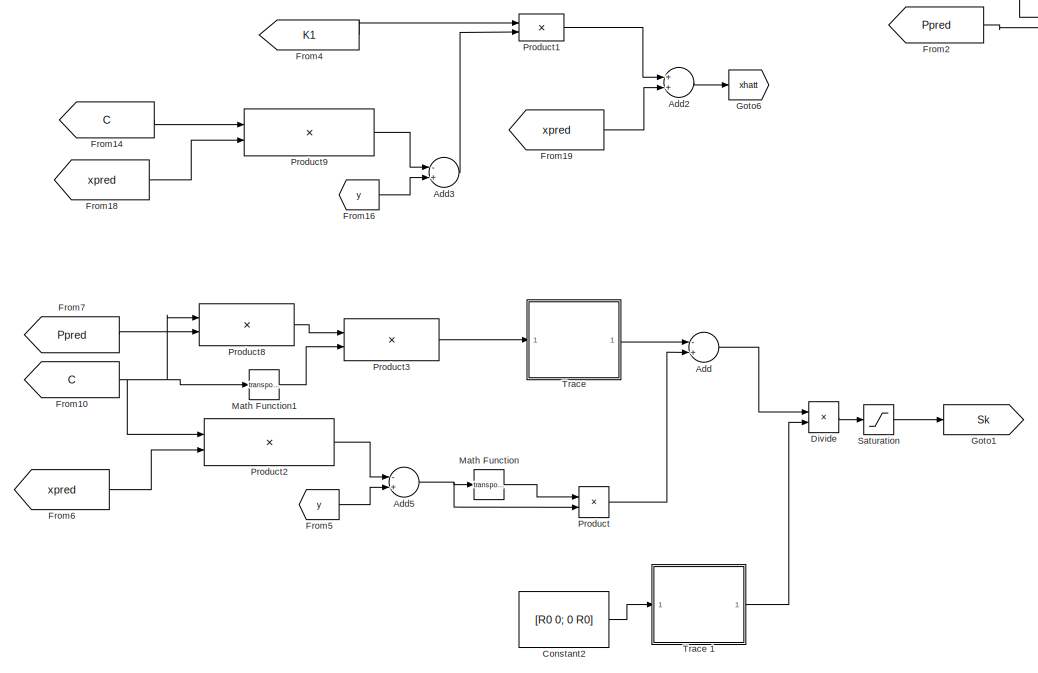
[diagram: SMNSF/Subsystem - part 4/4, bottom center region]
BLOCK [SubSystem] SMNSF/Subsystem
  Ports = [4, 2]
  RequestExecContextInheritance = off
BLOCK [Sum] SMNSF/Subsystem/Add
  InputSameDT = off
  Inputs = -+
  OutDataTypeStr = Inherit: Inherit via internal rule
  Ports = [2, 1]
  SaturateOnIntegerOverflow = off
BLOCK [Sum] SMNSF/Subsystem/Add1
  InputSameDT = off
  OutDataTypeStr = Inherit: Inherit via internal rule
  Ports = [2, 1]
  SaturateOnIntegerOverflow = off
BLOCK [Sum] SMNSF/Subsystem/Add2
  InputSameDT = off
  OutDataTypeStr = Inherit: Inherit via internal rule
  Ports = [2, 1]
  SaturateOnIntegerOverflow = off
BLOCK [Sum] SMNSF/Subsystem/Add3
  InputSameDT = off
  Inputs = -+
  OutDataTypeStr = Inherit: Inherit via internal rule
  Ports = [2, 1]
  SaturateOnIntegerOverflow = off
BLOCK [Sum] SMNSF/Subsystem/Add4
  InputSameDT = off
  Inputs = -+
  OutDataTypeStr = Inherit: Inherit via internal rule
  Ports = [2, 1]
  SaturateOnIntegerOverflow = off
BLOCK [Sum] SMNSF/Subsystem/Add5
  InputSameDT = off
  Inputs = -+
  OutDataTypeStr = Inherit: Inherit via internal rule
  Ports = [2, 1]
  SaturateOnIntegerOverflow = off
BLOCK [Clock] SMNSF/Subsystem/Clock
BLOCK [Constant] SMNSF/Subsystem/Constant1
BLOCK [Constant] SMNSF/Subsystem/Constant10
  Value = [R0 0; 0 R0]
BLOCK [Constant] SMNSF/Subsystem/Constant11
  Value = eye(2,2)
BLOCK [Constant] SMNSF/Subsystem/Constant2
  Value = [R0 0; 0 R0]
BLOCK [Display] SMNSF/Subsystem/Display
  Decimation = 1
  Ports = [1]
BLOCK [Product] SMNSF/Subsystem/Divide
  InputSameDT = off
  Inputs = */
  OutDataTypeStr = Inherit: Inherit via internal rule
  Ports = [2, 1]
  RndMeth = Floor
  SaturateOnIntegerOverflow = off
BLOCK [From] SMNSF/Subsystem/From
  GotoTag = Ppred
BLOCK [From] SMNSF/Subsystem/From1
  GotoTag = Ppred
BLOCK [From] SMNSF/Subsystem/From10
  GotoTag = C
BLOCK [From] SMNSF/Subsystem/From14
  GotoTag = C
BLOCK [From] SMNSF/Subsystem/From15
  GotoTag = C
BLOCK [From] SMNSF/Subsystem/From16
  GotoTag = y
BLOCK [From] SMNSF/Subsystem/From18
  GotoTag = xpred
BLOCK [From] SMNSF/Subsystem/From19
  GotoTag = xpred
BLOCK [From] SMNSF/Subsystem/From2
  GotoTag = Ppred
BLOCK [From] SMNSF/Subsystem/From21
  GotoTag = xhatt
BLOCK [From] SMNSF/Subsystem/From22
  GotoTag = Phat
BLOCK [From] SMNSF/Subsystem/From3
  GotoTag = Sk
BLOCK [From] SMNSF/Subsystem/From4
  GotoTag = K1
BLOCK [From] SMNSF/Subsystem/From5
  GotoTag = y
BLOCK [From] SMNSF/Subsystem/From6
  GotoTag = xpred
BLOCK [From] SMNSF/Subsystem/From7
  GotoTag = Ppred
BLOCK [From] SMNSF/Subsystem/From8
  GotoTag = K1
BLOCK [From] SMNSF/Subsystem/From9
  GotoTag = C
BLOCK [Goto] SMNSF/Subsystem/Goto
  GotoTag = K1
BLOCK [Goto] SMNSF/Subsystem/Goto1
  GotoTag = Sk
BLOCK [Goto] SMNSF/Subsystem/Goto10
  GotoTag = xpred
BLOCK [Goto] SMNSF/Subsystem/Goto2
  GotoTag = Ppred
BLOCK [Goto] SMNSF/Subsystem/Goto3
  GotoTag = C
BLOCK [Goto] SMNSF/Subsystem/Goto5
  GotoTag = Phat
BLOCK [Goto] SMNSF/Subsystem/Goto6
  GotoTag = xhatt
BLOCK [Goto] SMNSF/Subsystem/Goto9
  GotoTag = y
BLOCK [Inport] SMNSF/Subsystem/In1
  IconDisplay = Port number
BLOCK [Inport] SMNSF/Subsystem/In2
  IconDisplay = Port number
  Port = 2
BLOCK [Math] SMNSF/Subsystem/Math Function
  Operator = transpose
  Ports = [1, 1]
BLOCK [Math] SMNSF/Subsystem/Math Function1
  Operator = transpose
  Ports = [1, 1]
BLOCK [Math] SMNSF/Subsystem/Math Function2
  Operator = transpose
  Ports = [1, 1]
BLOCK [Outport] SMNSF/Subsystem/Phat 
  IconDisplay = Port number
  Port = 2
BLOCK [Product] SMNSF/Subsystem/Product
  InputSameDT = off
  Multiplication = Matrix(*)
  OutDataTypeStr = Inherit: Inherit via internal rule
  Ports = [2, 1]
  RndMeth = Floor
  SaturateOnIntegerOverflow = off
BLOCK [Product] SMNSF/Subsystem/Product of Elements
  InputSameDT = off
  Inputs = /
  Multiplication = Matrix(*)
  OutDataTypeStr = Inherit: Inherit via internal rule
  Ports = [1, 1]
  RndMeth = Floor
  SaturateOnIntegerOverflow = off
BLOCK [Product] SMNSF/Subsystem/Product1
  InputSameDT = off
  Multiplication = Matrix(*)
  OutDataTypeStr = Inherit: Inherit via internal rule
  Ports = [2, 1]
  RndMeth = Floor
  SaturateOnIntegerOverflow = off
BLOCK [Product] SMNSF/Subsystem/Product10
  InputSameDT = off
  Multiplication = Matrix(*)
  OutDataTypeStr = Inherit: Inherit via internal rule
  Ports = [2, 1]
  RndMeth = Floor
  SaturateOnIntegerOverflow = off
BLOCK [Product] SMNSF/Subsystem/Product11
  InputSameDT = off
  Multiplication = Matrix(*)
  OutDataTypeStr = Inherit: Inherit via internal rule
  Ports = [2, 1]
  RndMeth = Floor
  SaturateOnIntegerOverflow = off
BLOCK [Product] SMNSF/Subsystem/Product12
  InputSameDT = off
  OutDataTypeStr = Inherit: Inherit via internal rule
  Ports = [2, 1]
  RndMeth = Floor
  SaturateOnIntegerOverflow = off
BLOCK [Product] SMNSF/Subsystem/Product2
  InputSameDT = off
  Multiplication = Matrix(*)
  OutDataTypeStr = Inherit: Inherit via internal rule
  Ports = [2, 1]
  RndMeth = Floor
  SaturateOnIntegerOverflow = off
BLOCK [Product] SMNSF/Subsystem/Product3
  InputSameDT = off
  Multiplication = Matrix(*)
  OutDataTypeStr = Inherit: Inherit via internal rule
  Ports = [2, 1]
  RndMeth = Floor
  SaturateOnIntegerOverflow = off
BLOCK [Product] SMNSF/Subsystem/Product4
  InputSameDT = off
  Multiplication = Matrix(*)
  OutDataTypeStr = Inherit: Inherit via internal rule
  Ports = [2, 1]
  RndMeth = Floor
  SaturateOnIntegerOverflow = off
BLOCK [Product] SMNSF/Subsystem/Product5
  InputSameDT = off
  Multiplication = Matrix(*)
  OutDataTypeStr = Inherit: Inherit via internal rule
  Ports = [2, 1]
  RndMeth = Floor
  SaturateOnIntegerOverflow = off
BLOCK [Product] SMNSF/Subsystem/Product6
  InputSameDT = off
  Multiplication = Matrix(*)
  OutDataTypeStr = Inherit: Inherit via internal rule
  Ports = [2, 1]
  RndMeth = Floor
  SaturateOnIntegerOverflow = off
BLOCK [Product] SMNSF/Subsystem/Product7
  InputSameDT = off
  Multiplication = Matrix(*)
  OutDataTypeStr = Inherit: Inherit via internal rule
  Ports = [2, 1]
  RndMeth = Floor
  SaturateOnIntegerOverflow = off
BLOCK [Product] SMNSF/Subsystem/Product8
  InputSameDT = off
  Multiplication = Matrix(*)
  OutDataTypeStr = Inherit: Inherit via internal rule
  Ports = [2, 1]
  RndMeth = Floor
  SaturateOnIntegerOverflow = off
BLOCK [Product] SMNSF/Subsystem/Product9
  InputSameDT = off
  Multiplication = Matrix(*)
  OutDataTypeStr = Inherit: Inherit via internal rule
  Ports = [2, 1]
  RndMeth = Floor
  SaturateOnIntegerOverflow = off
BLOCK [Saturate] SMNSF/Subsystem/Saturation
  InputPortMap = u0
  LowerLimit = 1
  Ports = [1, 1]
  UpperLimit = 1000
BLOCK [Saturate] SMNSF/Subsystem/Saturation1
  InputPortMap = u0
  LowerLimit = 0
  Ports = [1, 1]
  UpperLimit = 1
BLOCK [Scope] SMNSF/Subsystem/Scope
  Floating = off
  NumInputPorts = 1
  Ports = [1]
  ScopeSpecificationString = Simulink.scopes.TimeScopeBlockCfg('CurrentConfiguration', extmgr.ConfigurationSet(extmgr.Configuration('Core','General UI',true),extmgr.Configuration('Core','Source UI',true),extmgr.Configuration('Sources','WiredSimulink',true,'DataLoggingVariableName','ScopeData3'),extmgr.Configuration('Visuals','Time Domain',true,'SerializedDisplays',{struct('MinYLimReal','-2.69839','MaxYLimReal','11.41204','YLa...<+1411ch>
BLOCK [Scope] SMNSF/Subsystem/Scope1
  Floating = off
  NumInputPorts = 1
  Ports = [1]
  ScopeSpecificationString = Simulink.scopes.TimeScopeBlockCfg('CurrentConfiguration', extmgr.ConfigurationSet(extmgr.Configuration('Core','General UI',true),extmgr.Configuration('Core','Source UI',true),extmgr.Configuration('Sources','WiredSimulink',true,'DataLoggingVariableName','ScopeData4'),extmgr.Configuration('Visuals','Time Domain',true,'SerializedDisplays',{struct('MinYLimReal','-20232.22125','MaxYLimReal','42446.7886...<+1408ch>
BLOCK [Scope] SMNSF/Subsystem/Scope2
  Floating = off
  NumInputPorts = 1
  Ports = [1]
  ScopeSpecificationString = Simulink.scopes.TimeScopeBlockCfg('CurrentConfiguration', extmgr.ConfigurationSet(extmgr.Configuration('Core','General UI',true),extmgr.Configuration('Core','Source UI',true),extmgr.Configuration('Sources','WiredSimulink',true,'DataLoggingVariableName','ScopeData6'),extmgr.Configuration('Visuals','Time Domain',true,'SerializedDisplays',{struct('MinYLimReal','-35.2473','MaxYLimReal','327.22573','YL...<+1885ch>
BLOCK [Scope] SMNSF/Subsystem/Scope6
  Floating = off
  NumInputPorts = 1
  Ports = [1]
  ScopeSpecificationString = Simulink.scopes.TimeScopeBlockCfg('CurrentConfiguration', extmgr.ConfigurationSet(extmgr.Configuration('Core','General UI',true),extmgr.Configuration('Core','Source UI',true),extmgr.Configuration('Sources','WiredSimulink',true,'DataLoggingVariableName','ScopeData15'),extmgr.Configuration('Visuals','Time Domain',true,'SerializedDisplays',{struct('MinYLimReal','-0.04024','MaxYLimReal','0.10868','YLa...<+1972ch>
BLOCK [Switch] SMNSF/Subsystem/Switch
  Criteria = u2 > Threshold
  InputSameDT = off
  SaturateOnIntegerOverflow = off
  Threshold = Ts
BLOCK [SubSystem] SMNSF/Subsystem/Trace 
  Ports = [1, 1]
  RequestExecContextInheritance = off
BLOCK [Reference] SMNSF/Subsystem/Trace /Extract Diagonal  REF=dspmtrx3/Extract Diagonal
  Ports = [1, 1]
  SourceBlock = dspmtrx3/Extract Diagonal
  SourceProductBaseCode = DS
  SourceProductName = DSP System Toolbox
  SourceType = Extract Diagonal
BLOCK [Inport] SMNSF/Subsystem/Trace /In1
  IconDisplay = Port number
BLOCK [Outport] SMNSF/Subsystem/Trace /Out1
  IconDisplay = Port number
BLOCK [Sum] SMNSF/Subsystem/Trace /Sum of Elements
  InputSameDT = off
  Inputs = +
  OutDataTypeStr = Inherit: Inherit via internal rule
  Ports = [1, 1]
  SaturateOnIntegerOverflow = off
BLOCK [SubSystem] SMNSF/Subsystem/Trace 1
  Ports = [1, 1]
  RequestExecContextInheritance = off
BLOCK [Reference] SMNSF/Subsystem/Trace 1/Extract Diagonal  REF=dspmtrx3/Extract Diagonal
  Ports = [1, 1]
  SourceBlock = dspmtrx3/Extract Diagonal
  SourceProductBaseCode = DS
  SourceProductName = DSP System Toolbox
  SourceType = Extract Diagonal
BLOCK [Inport] SMNSF/Subsystem/Trace 1/In1
  IconDisplay = Port number
BLOCK [Outport] SMNSF/Subsystem/Trace 1/Out1
  IconDisplay = Port number
BLOCK [Sum] SMNSF/Subsystem/Trace 1/Sum of Elements
  InputSameDT = off
  Inputs = +
  OutDataTypeStr = Inherit: Inherit via internal rule
  Ports = [1, 1]
  SaturateOnIntegerOverflow = off
BLOCK [Outport] SMNSF/Subsystem/Xhat
  IconDisplay = Port number
  PortDimensions = [2,1]
BLOCK [Inport] SMNSF/Subsystem/Xpred
  IconDisplay = Port number
  Port = 3
BLOCK [Inport] SMNSF/Subsystem/Y 
  IconDisplay = Port number
  Port = 4
BLOCK [SubSystem] SMNSF/Subsystem1
  Ports = [2, 3]
  RequestExecContextInheritance = off
BLOCK [Concatenate] SMNSF/Subsystem1/A
  ConcatenateDimension = 2
  Mode = Multidimensional array
  Ports = [2, 1]
BLOCK [Sum] SMNSF/Subsystem1/Add
  InputSameDT = off
  OutDataTypeStr = Inherit: Inherit via internal rule
  Ports = [2, 1]
  SaturateOnIntegerOverflow = off
BLOCK [Sum] SMNSF/Subsystem1/Add1
  InputSameDT = off
  OutDataTypeStr = Inherit: Inherit via internal rule
  Ports = [2, 1]
  SaturateOnIntegerOverflow = off
BLOCK [Outport] SMNSF/Subsystem1/C 
  IconDisplay = Port number
  Port = 3
BLOCK [Constant] SMNSF/Subsystem1/Constant
  Value = -g/l
BLOCK [Constant] SMNSF/Subsystem1/Constant1
  Value = 0
BLOCK [Constant] SMNSF/Subsystem1/Constant10
  Value = Ts
BLOCK [Constant] SMNSF/Subsystem1/Constant2
  Value = eye(2,2)
BLOCK [Constant] SMNSF/Subsystem1/Constant3
  Value = 0
BLOCK [Constant] SMNSF/Subsystem1/Constant4
  Value = 0
BLOCK [Constant] SMNSF/Subsystem1/Constant5
BLOCK [Constant] SMNSF/Subsystem1/Constant6
  Value = 0
BLOCK [Constant] SMNSF/Subsystem1/Constant7
  Value = Q0
BLOCK [Constant] SMNSF/Subsystem1/Constant8
BLOCK [Constant] SMNSF/Subsystem1/Constant9
  Value = 0
BLOCK [From] SMNSF/Subsystem1/From
  GotoTag = Ak
BLOCK [From] SMNSF/Subsystem1/From1
  GotoTag = A1
BLOCK [From] SMNSF/Subsystem1/From2
  GotoTag = xhat_1
BLOCK [From] SMNSF/Subsystem1/From3
  GotoTag = xhat_1
BLOCK [From] SMNSF/Subsystem1/From4
  GotoTag = phat_1
BLOCK [From] SMNSF/Subsystem1/From6
  GotoTag = xpred
BLOCK [From] SMNSF/Subsystem1/From7
  GotoTag = Ppred
BLOCK [From] SMNSF/Subsystem1/From8
  GotoTag = Ck
BLOCK [Goto] SMNSF/Subsystem1/Goto
  GotoTag = A1
BLOCK [Goto] SMNSF/Subsystem1/Goto1
  GotoTag = Ak
BLOCK [Goto] SMNSF/Subsystem1/Goto2
  GotoTag = xhat_1
BLOCK [Goto] SMNSF/Subsystem1/Goto3
  GotoTag = phat_1
BLOCK [Goto] SMNSF/Subsystem1/Goto5
  GotoTag = xpred
BLOCK [Goto] SMNSF/Subsystem1/Goto6
  GotoTag = Ppred
BLOCK [Goto] SMNSF/Subsystem1/Goto7
  GotoTag = Ck
BLOCK [SubSystem] SMNSF/Subsystem1/MATLAB Function
  ErrorFcn = Stateflow.Translate.translate
  PermitHierarchicalResolution = ExplicitOnly
  Ports = [2, 1]
  RequestExecContextInheritance = off
  SFBlockType = MATLAB Function
  TreatAsAtomicUnit = on
BLOCK [Demux] SMNSF/Subsystem1/MATLAB Function/ Demux 
  Outputs = 1
  Ports = [1, 1]
BLOCK [S-Function] SMNSF/Subsystem1/MATLAB Function/ SFunction 
  EnableBusSupport = on
  FunctionName = sf_sfun
  PortCounts = [2 2]
  Ports = [2, 2]
  SFcnIsStateOwnerBlock = off
  SFunctionDeploymentMode = off
  Tag = Stateflow S-Function Kalman_Filter_Simulink_Example_SMNSF_MMNSF 3
BLOCK [Terminator] SMNSF/Subsystem1/MATLAB Function/ Terminator 
BLOCK [Inport] SMNSF/Subsystem1/MATLAB Function/u
  IconDisplay = Port number
  Port = 2
BLOCK [Inport] SMNSF/Subsystem1/MATLAB Function/x
  IconDisplay = Port number
BLOCK [Outport] SMNSF/Subsystem1/MATLAB Function/y
  IconDisplay = Port number
BLOCK [Math] SMNSF/Subsystem1/Math Function
  Operator = transpose
  Ports = [1, 1]
BLOCK [Math] SMNSF/Subsystem1/Math Function1
  Operator = transpose
  Ports = [1, 1]
BLOCK [Concatenate] SMNSF/Subsystem1/Matrix Concatenate
  ConcatenateDimension = 2
  Mode = Multidimensional array
  Ports = [2, 1]
BLOCK [Outport] SMNSF/Subsystem1/Ppred
  IconDisplay = Port number
  Port = 2
BLOCK [Product] SMNSF/Subsystem1/Product
  InputSameDT = off
  OutDataTypeStr = Inherit: Inherit via internal rule
  Ports = [2, 1]
  RndMeth = Floor
  SaturateOnIntegerOverflow = off
BLOCK [Product] SMNSF/Subsystem1/Product1
  InputSameDT = off
  OutDataTypeStr = Inherit: Inherit via internal rule
  Ports = [2, 1]
  RndMeth = Floor
  SaturateOnIntegerOverflow = off
BLOCK [Product] SMNSF/Subsystem1/Product2
  InputSameDT = off
  Multiplication = Matrix(*)
  OutDataTypeStr = Inherit: Inherit via internal rule
  Ports = [2, 1]
  RndMeth = Floor
  SaturateOnIntegerOverflow = off
BLOCK [Product] SMNSF/Subsystem1/Product3
  InputSameDT = off
  Multiplication = Matrix(*)
  OutDataTypeStr = Inherit: Inherit via internal rule
  Ports = [2, 1]
  RndMeth = Floor
  SaturateOnIntegerOverflow = off
BLOCK [Concatenate] SMNSF/Subsystem1/Q
  ConcatenateDimension = 2
  Mode = Multidimensional array
  Ports = [2, 1]
BLOCK [Scope] SMNSF/Subsystem1/Scope
  Floating = off
  NumInputPorts = 1
  Ports = [1]
  ScopeSpecificationString = Simulink.scopes.TimeScopeBlockCfg('CurrentConfiguration', extmgr.ConfigurationSet(extmgr.Configuration('Core','General UI',true),extmgr.Configuration('Core','Source UI',true),extmgr.Configuration('Sources','WiredSimulink',true,'DataLoggingVariableName','ScopeData1'),extmgr.Configuration('Visuals','Time Domain',true,'SerializedDisplays',{struct('MinYLimReal','-8.38219','MaxYLimReal','75.43968','YLa...<+1729ch>
BLOCK [Selector] SMNSF/Subsystem1/Selector2
  IndexOptions = Index vector (dialog)
  Indices = 1
  InputPortWidth = 2
  OutputSizes = 1
  Ports = [1, 1]
BLOCK [Trigonometry] SMNSF/Subsystem1/Trigonometric Function
  Operator = cos
  Ports = [1, 1]
BLOCK [Concatenate] SMNSF/Subsystem1/Vector Concatenate
  Ports = [2, 1]
BLOCK [Concatenate] SMNSF/Subsystem1/Vector Concatenate1
  Ports = [2, 1]
BLOCK [Concatenate] SMNSF/Subsystem1/Vector Concatenate2
  Ports = [2, 1]
BLOCK [Concatenate] SMNSF/Subsystem1/Vector Concatenate3
  Ports = [2, 1]
BLOCK [Concatenate] SMNSF/Subsystem1/Vector Concatenate4
  Ports = [2, 1]
BLOCK [Inport] SMNSF/Subsystem1/phat_1
  IconDisplay = Port number
  Port = 2
BLOCK [Inport] SMNSF/Subsystem1/xhat_1
  IconDisplay = Port number
BLOCK [Outport] SMNSF/Subsystem1/xpred
  IconDisplay = Port number
BLOCK [Outport] SMNSF/xhat1
  IconDisplay = Port number
BLOCK [Inport] SMNSF/xhat_1
  IconDisplay = Port number
BLOCK [Inport] SMNSF/y1
  IconDisplay = Port number
  Port = 3
BLOCK [Scope] Scope
  Floating = off
  IOType = viewer
  NumInputPorts = 1
  Ports = []
  ScopeSpecificationString = Simulink.scopes.TimeScopeBlockCfg('CurrentConfiguration', extmgr.ConfigurationSet(extmgr.Configuration('Core','General UI',true,'FigureColor',[0.941176470588235 0.941176470588235 0.941176470588235]),extmgr.Configuration('Core','Source UI',true),extmgr.Configuration('Sources','WiredSimulink',true),extmgr.Configuration('Visuals','Time Domain',true,'SerializedDisplays',{struct('MinYLimReal','-5.48151...<+2461ch>
BLOCK [Scope] Scope1
  Floating = off
  NumInputPorts = 1
  Ports = [1]
  ScopeSpecificationString = Simulink.scopes.TimeScopeBlockCfg('CurrentConfiguration', extmgr.ConfigurationSet(extmgr.Configuration('Core','General UI',true),extmgr.Configuration('Core','Source UI',true),extmgr.Configuration('Sources','WiredSimulink',true,'DataLoggingVariableName','ScopeData1'),extmgr.Configuration('Visuals','Time Domain',true,'SerializedDisplays',{struct('MinYLimReal','0.90593','MaxYLimReal','1.10098','YLabe...<+1542ch>
BLOCK [Scope] Scope2
  Floating = off
  NumInputPorts = 1
  Ports = [1]
  ScopeSpecificationString = Simulink.scopes.TimeScopeBlockCfg('CurrentConfiguration', extmgr.ConfigurationSet(extmgr.Configuration('Core','General UI',true),extmgr.Configuration('Core','Source UI',true),extmgr.Configuration('Sources','WiredSimulink',true,'DataLoggingVariableName','ScopeData1'),extmgr.Configuration('Visuals','Time Domain',true,'SerializedDisplays',{struct('MinYLimReal','-4.42572','MaxYLimReal','5.14622','YLab...<+1541ch>
BLOCK [Scope] Scope5
  Floating = off
  NumInputPorts = 1
  Ports = [1]
  ScopeSpecificationString = Simulink.scopes.TimeScopeBlockCfg('CurrentConfiguration', extmgr.ConfigurationSet(extmgr.Configuration('Core','General UI',true),extmgr.Configuration('Core','Source UI',true),extmgr.Configuration('Sources','WiredSimulink',true,'DataLoggingVariableName','ScopeData16'),extmgr.Configuration('Visuals','Time Domain',true,'SerializedDisplays',{struct('MinYLimReal','-2.05741','MaxYLimReal','2.09825','YLa...<+1545ch>
BLOCK [Selector] Selector
  IndexOptions = Index vector (dialog)
  Indices = 1
  InputPortWidth = 2
  OutputSizes = 1
  Ports = [1, 1]
BLOCK [Selector] Selector1
  IndexOptions = Index vector (dialog)
  Indices = 1
  InputPortWidth = 2
  OutputSizes = 1
  Ports = [1, 1]
BLOCK [Selector] Selector2
  IndexOptions = Index vector (dialog)
  Indices = 2
  InputPortWidth = 2
  OutputSizes = 1
  Ports = [1, 1]
BLOCK [Selector] Selector3
  IndexOptions = Index vector (dialog)
  Indices = 2
  InputPortWidth = 2
  OutputSizes = 1
  Ports = [1, 1]
BLOCK [Selector] Selector4
  IndexOptions = Index vector (dialog),Index vector (dialog)
  Indices = 1,1
  InputPortWidth = 3
  NumberOfDimensions = 2
  OutputSizes = 1,1
  Ports = [1, 1]
BLOCK [Selector] Selector5
  IndexOptions = Index vector (dialog),Index vector (dialog)
  Indices = 1,1
  InputPortWidth = 3
  NumberOfDimensions = 2
  OutputSizes = 1,1
  Ports = [1, 1]
BLOCK [Selector] Selector6
  IndexOptions = Index vector (dialog),Index vector (dialog)
  Indices = 1,1
  InputPortWidth = 3
  NumberOfDimensions = 2
  OutputSizes = 1,1
  Ports = [1, 1]
BLOCK [Selector] Selector7
  IndexOptions = Index vector (dialog)
  Indices = 1
  InputPortWidth = 2
  OutputSizes = 1
  Ports = [1, 1]
BLOCK [Selector] Selector8
  IndexOptions = Index vector (dialog)
  Indices = 2
  InputPortWidth = 2
  OutputSizes = 1
  Ports = [1, 1]
BLOCK [Sum] Sum
  IconShape = round
  InputSameDT = off
  Inputs = ++|
  OutDataTypeStr = Inherit: Inherit via internal rule
  Ports = [2, 1]
  SaturateOnIntegerOverflow = off
BLOCK [Sum] Sum1
  IconShape = round
  InputSameDT = off
  Inputs = ++|
  OutDataTypeStr = Inherit: Inherit via internal rule
  Ports = [2, 1]
  SaturateOnIntegerOverflow = off
BLOCK [Switch] Switch1
  InputSameDT = off
  SaturateOnIntegerOverflow = off
  Threshold = Ts
BLOCK [Switch] Switch3
  InputSameDT = off
  SaturateOnIntegerOverflow = off
  Threshold = Ts
BLOCK [Switch] Switch5
  Criteria = u2 > Threshold
  InputSameDT = off
  SaturateOnIntegerOverflow = off
  Threshold = 40
BLOCK [Switch] Switch6
  InputSameDT = off
  SaturateOnIntegerOverflow = off
  Threshold = Ts
BLOCK [Switch] Switch7
  InputSameDT = off
  SaturateOnIntegerOverflow = off
  Threshold = Ts
BLOCK [Scope] Theta4
  Floating = off
  NumInputPorts = 1
  Ports = [1]
  ScopeSpecificationString = Simulink.scopes.TimeScopeBlockCfg('CurrentConfiguration', extmgr.ConfigurationSet(extmgr.Configuration('Core','General UI',true,'FigureColor',[0 0 0]),extmgr.Configuration('Core','Source UI',true),extmgr.Configuration('Sources','WiredSimulink',true,'DataLoggingVariableName','ScopeData8'),extmgr.Configuration('Visuals','Time Domain',true,'SerializedDisplays',{struct('MinYLimReal','0.69546','MaxYLim...<+2141ch>
BLOCK [Scope] Theta5
  Floating = off
  NumInputPorts = 1
  Ports = [1]
  ScopeSpecificationString = Simulink.scopes.TimeScopeBlockCfg('CurrentConfiguration', extmgr.ConfigurationSet(extmgr.Configuration('Core','General UI',true),extmgr.Configuration('Core','Source UI',true),extmgr.Configuration('Sources','WiredSimulink',true,'DataLoggingVariableName','ScopeData9'),extmgr.Configuration('Visuals','Time Domain',true,'SerializedDisplays',{struct('MinYLimReal','-7.30276','MaxYLimReal','7.53868','YLab...<+1599ch>
BLOCK [Constant] Torque
  Value = 0
BLOCK [Concatenate] Vector Concatenate1
  Ports = [2, 1]
BLOCK [Concatenate] Vector Concatenate2
  Ports = [2, 1]
BLOCK [ZeroOrderHold] Zero-Order Hold
  SampleTime = Ts
BLOCK [ZeroOrderHold] Zero-Order Hold1
  SampleTime = Ts
BLOCK [ZeroOrderHold] Zero-Order Hold2
  SampleTime = Ts
ANNOTATION (root): <copyright redacted>
ANNOTATION (root): Input
ANNOTATION (root): Monitor
ANNOTATION (root): Subsystem
ANNOTATION MMNSF: Prediction
ANNOTATION MMNSF: Update
ANNOTATION MMNSF/Subsystem: Subsystem
ANNOTATION MMNSF/Subsystem1: Subsystem
ANNOTATION SMNSF: Prediction
ANNOTATION SMNSF: Update
ANNOTATION SMNSF/Subsystem: Subsystem
ANNOTATION SMNSF/Subsystem1: Subsystem
LINE Add1:1 -> Mux:2
LINE Add2:1 -> Mux:3
LINE Add3:1 -> Mux4:2
LINE Add4:1 -> Mux4:3
LINE Add5:1 -> Mux5:2
LINE Add6:1 -> Mux5:3
NET Clock2:1 -> Switch1:2, Switch3:2
LINE Clock3:1 -> Switch5:2
NET Clock4:1 -> Switch6:2, Switch7:2
LINE Constant1:1 -> Vector Concatenate1:1
LINE Constant2:1 -> Vector Concatenate1:2
LINE Constant3:1 -> Switch3:3
LINE Constant6:1 -> Vector Concatenate2:1
LINE Constant7:1 -> Vector Concatenate2:2
LINE Constant8:1 -> Switch7:3
LINE Delay1:1 -> Goto23:1
LINE Delay2:1 -> Goto8:1
LINE Delay3:1 -> Goto9:1
LINE Delay:1 -> Goto22:1
NET Extended Kalman Filter:1 -> Selector3:1, Selector:1
LINE Extended Kalman Filter:2 -> Goto10:1
LINE Freeze:1 -> Goto2:1
LINE From10:1 -> Mux2:6
LINE From11:1 -> Mux3:4
LINE From12:1 -> Sum:2
LINE From13:1 -> Sum1:2
LINE From14:1 -> Switch7:1
LINE From15:1 -> Mux2:5
LINE From16:1 -> Zero-Order Hold:1
LINE From17:1 -> Mux3:3
LINE From18:1 -> Zero-Order Hold2:1
LINE From19:1 -> Mux3:2
LINE From1:1 -> SMNSF:1
LINE From20:1 -> Zero-Order Hold1:1
LINE From21:1 -> Mux2:4
LINE From22:1 -> Mux2:2
LINE From23:1 -> Mux2:1
NET From24:1 -> Add3:1, Add4:1, Mux4:1
LINE From25:1 -> Mux3:1
LINE From26:1 -> Selector4:1
LINE From27:1 -> Mux2:3
LINE From28:1 -> Selector5:1
LINE From29:1 -> SMNSF:3
LINE From2:1 -> Selector6:1
NET From30:1 -> Add5:1, Add6:1, Mux5:1
LINE From3:1 -> MMNSF:1
LINE From4:1 -> Switch3:1
LINE From5:1 -> MMNSF:3
LINE From6:1 -> MMNSF:2
LINE From7:1 -> Switch1:1
LINE From8:1 -> SMNSF:2
LINE From9:1 -> Switch6:1
NET From:1 -> Add1:1, Add2:1, Mux:1
LINE Gain1:1 -> Add2:2
LINE Gain2:1 -> Add3:2
LINE Gain3:1 -> Add4:2
LINE Gain4:1 -> Add5:2
LINE Gain5:1 -> Add6:2
LINE Gain:1 -> Add1:2
LINE MMNSF/From1:1 -> MMNSF/Subsystem:1
LINE MMNSF/From2:1 -> MMNSF/Subsystem:2
LINE MMNSF/From3:1 -> MMNSF/Subsystem:3
LINE MMNSF/Phat_1:1 -> MMNSF/Subsystem1:2
LINE MMNSF/Subsystem/Add1:1 -> MMNSF/Subsystem/Product of Elements:1
LINE MMNSF/Subsystem/Add2:1 -> MMNSF/Subsystem/Goto6:1
LINE MMNSF/Subsystem/Add3:1 -> MMNSF/Subsystem/Product1:2
LINE MMNSF/Subsystem/Add4:1 -> MMNSF/Subsystem/Product11:1
NET MMNSF/Subsystem/Add5:1 -> MMNSF/Subsystem/Math Function:1, MMNSF/Subsystem/Product:1
LINE MMNSF/Subsystem/Add:1 -> MMNSF/Subsystem/Product13:1
LINE MMNSF/Subsystem/Clock:1 -> MMNSF/Subsystem/Switch:2
LINE MMNSF/Subsystem/Constant10:1 -> MMNSF/Subsystem/Product12:1
LINE MMNSF/Subsystem/Constant11:1 -> MMNSF/Subsystem/Add4:2
LINE MMNSF/Subsystem/Constant1:1 -> MMNSF/Subsystem/Switch:3
LINE MMNSF/Subsystem/Constant2:1 -> MMNSF/Subsystem/Product of Elements1:1
LINE MMNSF/Subsystem/Create Diagonal Matrix:1 -> MMNSF/Subsystem/Saturation:1
LINE MMNSF/Subsystem/Extract Diagonal1:1 -> MMNSF/Subsystem/Scope2:1
LINE MMNSF/Subsystem/Extract Diagonal:1 -> MMNSF/Subsystem/Create Diagonal Matrix:1
NET MMNSF/Subsystem/From10:1 -> MMNSF/Subsystem/Math Function1:1, MMNSF/Subsystem/Product2:1, MMNSF/Subsystem/Product8:1
LINE MMNSF/Subsystem/From14:1 -> MMNSF/Subsystem/Product9:1
LINE MMNSF/Subsystem/From15:1 -> MMNSF/Subsystem/Product10:2
LINE MMNSF/Subsystem/From16:1 -> MMNSF/Subsystem/Add3:2
LINE MMNSF/Subsystem/From18:1 -> MMNSF/Subsystem/Product9:2
LINE MMNSF/Subsystem/From19:1 -> MMNSF/Subsystem/Add2:2
LINE MMNSF/Subsystem/From1:1 -> MMNSF/Subsystem/Product5:2
LINE MMNSF/Subsystem/From21:1 -> MMNSF/Subsystem/Xhat:1
LINE MMNSF/Subsystem/From22:1 -> MMNSF/Subsystem/Phat :1
LINE MMNSF/Subsystem/From2:1 -> MMNSF/Subsystem/Product11:2
LINE MMNSF/Subsystem/From3:1 -> MMNSF/Subsystem/Switch:1
LINE MMNSF/Subsystem/From4:1 -> MMNSF/Subsystem/Product1:1
LINE MMNSF/Subsystem/From5:1 -> MMNSF/Subsystem/Add5:2
LINE MMNSF/Subsystem/From6:1 -> MMNSF/Subsystem/Product2:2
LINE MMNSF/Subsystem/From7:1 -> MMNSF/Subsystem/Product8:2
LINE MMNSF/Subsystem/From8:1 -> MMNSF/Subsystem/Product10:1
NET MMNSF/Subsystem/From9:1 -> MMNSF/Subsystem/Math Function2:1, MMNSF/Subsystem/Product5:1
LINE MMNSF/Subsystem/From:1 -> MMNSF/Subsystem/Product4:1
LINE MMNSF/Subsystem/In1:1 -> MMNSF/Subsystem/Goto2:1
LINE MMNSF/Subsystem/In2:1 -> MMNSF/Subsystem/Goto3:1
LINE MMNSF/Subsystem/Math Function1:1 -> MMNSF/Subsystem/Product3:2
NET MMNSF/Subsystem/Math Function2:1 -> MMNSF/Subsystem/Product4:2, MMNSF/Subsystem/Product6:2
LINE MMNSF/Subsystem/Math Function:1 -> MMNSF/Subsystem/Product:2
LINE MMNSF/Subsystem/Product of Elements1:1 -> MMNSF/Subsystem/Product13:2
NET MMNSF/Subsystem/Product of Elements:1 -> MMNSF/Subsystem/Product7:2, MMNSF/Subsystem/Scope1:1
LINE MMNSF/Subsystem/Product10:1 -> MMNSF/Subsystem/Add4:1
NET MMNSF/Subsystem/Product11:1 -> MMNSF/Subsystem/Display:1, MMNSF/Subsystem/Goto5:1
LINE MMNSF/Subsystem/Product12:1 -> MMNSF/Subsystem/Add1:2
LINE MMNSF/Subsystem/Product13:1 -> MMNSF/Subsystem/Extract Diagonal:1
LINE MMNSF/Subsystem/Product1:1 -> MMNSF/Subsystem/Add2:1
LINE MMNSF/Subsystem/Product2:1 -> MMNSF/Subsystem/Add5:1
LINE MMNSF/Subsystem/Product3:1 -> MMNSF/Subsystem/Add:1
NET MMNSF/Subsystem/Product4:1 -> MMNSF/Subsystem/Product7:1, MMNSF/Subsystem/Scope:1
LINE MMNSF/Subsystem/Product5:1 -> MMNSF/Subsystem/Product6:1
LINE MMNSF/Subsystem/Product6:1 -> MMNSF/Subsystem/Add1:1
LINE MMNSF/Subsystem/Product7:1 -> MMNSF/Subsystem/Saturation1:1
LINE MMNSF/Subsystem/Product8:1 -> MMNSF/Subsystem/Product3:1
LINE MMNSF/Subsystem/Product9:1 -> MMNSF/Subsystem/Add3:1
LINE MMNSF/Subsystem/Product:1 -> MMNSF/Subsystem/Window 1:1
NET MMNSF/Subsystem/Saturation1:1 -> MMNSF/Subsystem/Goto:1, MMNSF/Subsystem/Scope6:1
LINE MMNSF/Subsystem/Saturation:1 -> MMNSF/Subsystem/Goto1:1
NET MMNSF/Subsystem/Switch:1 -> MMNSF/Subsystem/Extract Diagonal1:1, MMNSF/Subsystem/Product12:2
LINE MMNSF/Subsystem/Window 1/Add9:1 -> MMNSF/Subsystem/Window 1/Divide1:1
LINE MMNSF/Subsystem/Window 1/Constant2:1 -> MMNSF/Subsystem/Window 1/Divide1:2
LINE MMNSF/Subsystem/Window 1/Delay14:1 -> MMNSF/Subsystem/Window 1/Add9:2
LINE MMNSF/Subsystem/Window 1/Delay15:1 -> MMNSF/Subsystem/Window 1/Add9:3
LINE MMNSF/Subsystem/Window 1/Delay16:1 -> MMNSF/Subsystem/Window 1/Add9:15
LINE MMNSF/Subsystem/Window 1/Delay17:1 -> MMNSF/Subsystem/Window 1/Add9:12
LINE MMNSF/Subsystem/Window 1/Delay18:1 -> MMNSF/Subsystem/Window 1/Add9:13
LINE MMNSF/Subsystem/Window 1/Delay19:1 -> MMNSF/Subsystem/Window 1/Add9:14
LINE MMNSF/Subsystem/Window 1/Delay20:1 -> MMNSF/Subsystem/Window 1/Add9:4
LINE MMNSF/Subsystem/Window 1/Delay21:1 -> MMNSF/Subsystem/Window 1/Add9:5
LINE MMNSF/Subsystem/Window 1/Delay22:1 -> MMNSF/Subsystem/Window 1/Add9:6
LINE MMNSF/Subsystem/Window 1/Delay23:1 -> MMNSF/Subsystem/Window 1/Add9:7
LINE MMNSF/Subsystem/Window 1/Delay24:1 -> MMNSF/Subsystem/Window 1/Add9:8
LINE MMNSF/Subsystem/Window 1/Delay25:1 -> MMNSF/Subsystem/Window 1/Add9:9
LINE MMNSF/Subsystem/Window 1/Delay26:1 -> MMNSF/Subsystem/Window 1/Add9:10
LINE MMNSF/Subsystem/Window 1/Delay27:1 -> MMNSF/Subsystem/Window 1/Add9:11
LINE MMNSF/Subsystem/Window 1/Delay30:1 -> MMNSF/Subsystem/Window 1/Add9:16
LINE MMNSF/Subsystem/Window 1/Delay31:1 -> MMNSF/Subsystem/Window 1/Add9:17
LINE MMNSF/Subsystem/Window 1/Delay32:1 -> MMNSF/Subsystem/Window 1/Add9:18
LINE MMNSF/Subsystem/Window 1/Delay33:1 -> MMNSF/Subsystem/Window 1/Add9:19
LINE MMNSF/Subsystem/Window 1/Delay34:1 -> MMNSF/Subsystem/Window 1/Add9:20
LINE MMNSF/Subsystem/Window 1/Divide1:1 -> MMNSF/Subsystem/Window 1/Out1:1
NET MMNSF/Subsystem/Window 1/In1:1 -> MMNSF/Subsystem/Window 1/Add9:1, MMNSF/Subsystem/Window 1/Delay14:1, MMNSF/Subsystem/Window 1/Delay15:1, MMNSF/Subsystem/Window 1/Delay16:1, MMNSF/Subsystem/Window 1/Delay17:1, MMNSF/Subsystem/Window 1/Delay18:1, MMNSF/Subsystem/Window 1/Delay19:1, MMNSF/Subsystem/Window 1/Delay20:1, MMNSF/Subsystem/Window 1/Delay21:1, MMNSF/Subsystem/Window 1/Delay22:1, MMNSF/Subsystem/Window 1/Delay23:1, MMNSF/Subsystem/Window 1/Delay24:1, MMNSF/Subsystem/Window 1/Delay25:1, MMNSF/Subsystem/Window 1/Delay26:1, MMNSF/Subsystem/Window 1/Delay27:1, MMNSF/Subsystem/Window 1/Delay30:1, MMNSF/Subsystem/Window 1/Delay31:1, MMNSF/Subsystem/Window 1/Delay32:1, MMNSF/Subsystem/Window 1/Delay33:1, MMNSF/Subsystem/Window 1/Delay34:1
LINE MMNSF/Subsystem/Window 1:1 -> MMNSF/Subsystem/Add:2
LINE MMNSF/Subsystem/Xpred:1 -> MMNSF/Subsystem/Goto10:1
LINE MMNSF/Subsystem/Y :1 -> MMNSF/Subsystem/Goto9:1
LINE MMNSF/Subsystem1/A:1 -> MMNSF/Subsystem1/Goto:1
LINE MMNSF/Subsystem1/Add1:1 -> MMNSF/Subsystem1/Goto1:1
LINE MMNSF/Subsystem1/Add:1 -> MMNSF/Subsystem1/Goto6:1
LINE MMNSF/Subsystem1/Constant10:1 -> MMNSF/Subsystem1/Product1:2
LINE MMNSF/Subsystem1/Constant1:1 -> MMNSF/Subsystem1/MATLAB Function:2
LINE MMNSF/Subsystem1/Constant2:1 -> MMNSF/Subsystem1/Add1:2
LINE MMNSF/Subsystem1/Constant3:1 -> MMNSF/Subsystem1/Vector Concatenate1:2
LINE MMNSF/Subsystem1/Constant4:1 -> MMNSF/Subsystem1/Vector Concatenate2:1
LINE MMNSF/Subsystem1/Constant5:1 -> MMNSF/Subsystem1/Vector Concatenate1:1
NET MMNSF/Subsystem1/Constant6:1 -> MMNSF/Subsystem1/Vector Concatenate3:1, MMNSF/Subsystem1/Vector Concatenate:1, MMNSF/Subsystem1/Vector Concatenate:2
LINE MMNSF/Subsystem1/Constant7:1 -> MMNSF/Subsystem1/Vector Concatenate3:2
LINE MMNSF/Subsystem1/Constant8:1 -> MMNSF/Subsystem1/Vector Concatenate4:1
LINE MMNSF/Subsystem1/Constant9:1 -> MMNSF/Subsystem1/Vector Concatenate4:2
LINE MMNSF/Subsystem1/Constant:1 -> MMNSF/Subsystem1/Product:2
LINE MMNSF/Subsystem1/From1:1 -> MMNSF/Subsystem1/Product1:1
LINE MMNSF/Subsystem1/From2:1 -> MMNSF/Subsystem1/Selector2:1
LINE MMNSF/Subsystem1/From3:1 -> MMNSF/Subsystem1/MATLAB Function:1
NET MMNSF/Subsystem1/From4:1 -> MMNSF/Subsystem1/Product2:2, MMNSF/Subsystem1/Scope:1
LINE MMNSF/Subsystem1/From6:1 -> MMNSF/Subsystem1/xpred:1
LINE MMNSF/Subsystem1/From7:1 -> MMNSF/Subsystem1/Ppred:1
LINE MMNSF/Subsystem1/From8:1 -> MMNSF/Subsystem1/C :1
NET MMNSF/Subsystem1/From:1 -> MMNSF/Subsystem1/Math Function:1, MMNSF/Subsystem1/Product2:1
LINE MMNSF/Subsystem1/MATLAB Function:1 -> MMNSF/Subsystem1/Goto5:1
LINE MMNSF/Subsystem1/Math Function1:1 -> MMNSF/Subsystem1/Goto7:1
LINE MMNSF/Subsystem1/Math Function:1 -> MMNSF/Subsystem1/Product3:2
LINE MMNSF/Subsystem1/Matrix Concatenate:1 -> MMNSF/Subsystem1/Math Function1:1
LINE MMNSF/Subsystem1/Product1:1 -> MMNSF/Subsystem1/Add1:1
LINE MMNSF/Subsystem1/Product2:1 -> MMNSF/Subsystem1/Product3:1
LINE MMNSF/Subsystem1/Product3:1 -> MMNSF/Subsystem1/Add:1
LINE MMNSF/Subsystem1/Product:1 -> MMNSF/Subsystem1/Vector Concatenate2:2
LINE MMNSF/Subsystem1/Q:1 -> MMNSF/Subsystem1/Add:2
LINE MMNSF/Subsystem1/Selector2:1 -> MMNSF/Subsystem1/Trigonometric Function:1
LINE MMNSF/Subsystem1/Trigonometric Function:1 -> MMNSF/Subsystem1/Product:1
LINE MMNSF/Subsystem1/Vector Concatenate1:1 -> MMNSF/Subsystem1/A:2
LINE MMNSF/Subsystem1/Vector Concatenate2:1 -> MMNSF/Subsystem1/A:1
LINE MMNSF/Subsystem1/Vector Concatenate3:1 -> MMNSF/Subsystem1/Q:2
NET MMNSF/Subsystem1/Vector Concatenate4:1 -> MMNSF/Subsystem1/Matrix Concatenate:1, MMNSF/Subsystem1/Matrix Concatenate:2
LINE MMNSF/Subsystem1/Vector Concatenate:1 -> MMNSF/Subsystem1/Q:1
LINE MMNSF/Subsystem1/phat_1:1 -> MMNSF/Subsystem1/Goto3:1
LINE MMNSF/Subsystem1/xhat_1:1 -> MMNSF/Subsystem1/Goto2:1
LINE MMNSF/Subsystem1:1 -> MMNSF/Goto4:1
LINE MMNSF/Subsystem1:2 -> MMNSF/Goto1:1
LINE MMNSF/Subsystem1:3 -> MMNSF/Goto3:1
LINE MMNSF/Subsystem:1 -> MMNSF/xhat1:1
LINE MMNSF/Subsystem:2 -> MMNSF/Phat1:1
LINE MMNSF/xhat_1:1 -> MMNSF/Subsystem1:1
LINE MMNSF/y1:1 -> MMNSF/Subsystem:4
NET MMNSF:1 -> Delay2:1, Selector1:1, Selector2:1
LINE MMNSF:2 -> Delay3:1
LINE Measurement Noise3:1 -> Sum1:1
LINE Measurement Noise:1 -> Sum:1
LINE Mux1:1 -> Goto26:1
LINE Mux2:1 -> Theta4:1
LINE Mux3:1 -> Theta5:1
LINE Mux4:1 -> Scope1:1
LINE Mux5:1 -> Scope2:1
LINE Mux:1 -> Scope5:1
LINE Pendulum:1 -> Goto5:1
LINE Pendulum:2 -> Goto15:1
LINE Process Noise2:1 -> Switch5:1
LINE Process Noise:1 -> Switch5:3
LINE SMNSF/From1:1 -> SMNSF/Subsystem:1
LINE SMNSF/From2:1 -> SMNSF/Subsystem:2
LINE SMNSF/From3:1 -> SMNSF/Subsystem:3
LINE SMNSF/Phat_1:1 -> SMNSF/Subsystem1:2
LINE SMNSF/Subsystem/Add1:1 -> SMNSF/Subsystem/Product of Elements:1
LINE SMNSF/Subsystem/Add2:1 -> SMNSF/Subsystem/Goto6:1
LINE SMNSF/Subsystem/Add3:1 -> SMNSF/Subsystem/Product1:2
LINE SMNSF/Subsystem/Add4:1 -> SMNSF/Subsystem/Product11:1
NET SMNSF/Subsystem/Add5:1 -> SMNSF/Subsystem/Math Function:1, SMNSF/Subsystem/Product:2
LINE SMNSF/Subsystem/Add:1 -> SMNSF/Subsystem/Divide:1
LINE SMNSF/Subsystem/Clock:1 -> SMNSF/Subsystem/Switch:2
LINE SMNSF/Subsystem/Constant10:1 -> SMNSF/Subsystem/Product12:1
LINE SMNSF/Subsystem/Constant11:1 -> SMNSF/Subsystem/Add4:2
LINE SMNSF/Subsystem/Constant1:1 -> SMNSF/Subsystem/Switch:3
LINE SMNSF/Subsystem/Constant2:1 -> SMNSF/Subsystem/Trace 1:1
LINE SMNSF/Subsystem/Divide:1 -> SMNSF/Subsystem/Saturation:1
NET SMNSF/Subsystem/From10:1 -> SMNSF/Subsystem/Math Function1:1, SMNSF/Subsystem/Product2:1, SMNSF/Subsystem/Product8:1
LINE SMNSF/Subsystem/From14:1 -> SMNSF/Subsystem/Product9:1
LINE SMNSF/Subsystem/From15:1 -> SMNSF/Subsystem/Product10:2
LINE SMNSF/Subsystem/From16:1 -> SMNSF/Subsystem/Add3:2
LINE SMNSF/Subsystem/From18:1 -> SMNSF/Subsystem/Product9:2
LINE SMNSF/Subsystem/From19:1 -> SMNSF/Subsystem/Add2:2
LINE SMNSF/Subsystem/From1:1 -> SMNSF/Subsystem/Product5:2
LINE SMNSF/Subsystem/From21:1 -> SMNSF/Subsystem/Xhat:1
LINE SMNSF/Subsystem/From22:1 -> SMNSF/Subsystem/Phat :1
LINE SMNSF/Subsystem/From2:1 -> SMNSF/Subsystem/Product11:2
LINE SMNSF/Subsystem/From3:1 -> SMNSF/Subsystem/Switch:1
LINE SMNSF/Subsystem/From4:1 -> SMNSF/Subsystem/Product1:1
LINE SMNSF/Subsystem/From5:1 -> SMNSF/Subsystem/Add5:2
LINE SMNSF/Subsystem/From6:1 -> SMNSF/Subsystem/Product2:2
LINE SMNSF/Subsystem/From7:1 -> SMNSF/Subsystem/Product8:2
LINE SMNSF/Subsystem/From8:1 -> SMNSF/Subsystem/Product10:1
NET SMNSF/Subsystem/From9:1 -> SMNSF/Subsystem/Math Function2:1, SMNSF/Subsystem/Product5:1
LINE SMNSF/Subsystem/From:1 -> SMNSF/Subsystem/Product4:1
LINE SMNSF/Subsystem/In1:1 -> SMNSF/Subsystem/Goto2:1
LINE SMNSF/Subsystem/In2:1 -> SMNSF/Subsystem/Goto3:1
LINE SMNSF/Subsystem/Math Function1:1 -> SMNSF/Subsystem/Product3:2
NET SMNSF/Subsystem/Math Function2:1 -> SMNSF/Subsystem/Product4:2, SMNSF/Subsystem/Product6:2
LINE SMNSF/Subsystem/Math Function:1 -> SMNSF/Subsystem/Product:1
NET SMNSF/Subsystem/Product of Elements:1 -> SMNSF/Subsystem/Product7:2, SMNSF/Subsystem/Scope1:1
LINE SMNSF/Subsystem/Product10:1 -> SMNSF/Subsystem/Add4:1
NET SMNSF/Subsystem/Product11:1 -> SMNSF/Subsystem/Display:1, SMNSF/Subsystem/Goto5:1
LINE SMNSF/Subsystem/Product12:1 -> SMNSF/Subsystem/Add1:2
LINE SMNSF/Subsystem/Product1:1 -> SMNSF/Subsystem/Add2:1
LINE SMNSF/Subsystem/Product2:1 -> SMNSF/Subsystem/Add5:1
LINE SMNSF/Subsystem/Product3:1 -> SMNSF/Subsystem/Trace :1
NET SMNSF/Subsystem/Product4:1 -> SMNSF/Subsystem/Product7:1, SMNSF/Subsystem/Scope:1
LINE SMNSF/Subsystem/Product5:1 -> SMNSF/Subsystem/Product6:1
LINE SMNSF/Subsystem/Product6:1 -> SMNSF/Subsystem/Add1:1
LINE SMNSF/Subsystem/Product7:1 -> SMNSF/Subsystem/Saturation1:1
LINE SMNSF/Subsystem/Product8:1 -> SMNSF/Subsystem/Product3:1
LINE SMNSF/Subsystem/Product9:1 -> SMNSF/Subsystem/Add3:1
LINE SMNSF/Subsystem/Product:1 -> SMNSF/Subsystem/Add:2
NET SMNSF/Subsystem/Saturation1:1 -> SMNSF/Subsystem/Goto:1, SMNSF/Subsystem/Scope6:1
LINE SMNSF/Subsystem/Saturation:1 -> SMNSF/Subsystem/Goto1:1
NET SMNSF/Subsystem/Switch:1 -> SMNSF/Subsystem/Product12:2, SMNSF/Subsystem/Scope2:1
LINE SMNSF/Subsystem/Trace /Extract Diagonal:1 -> SMNSF/Subsystem/Trace /Sum of Elements:1
LINE SMNSF/Subsystem/Trace /In1:1 -> SMNSF/Subsystem/Trace /Extract Diagonal:1
LINE SMNSF/Subsystem/Trace /Sum of Elements:1 -> SMNSF/Subsystem/Trace /Out1:1
LINE SMNSF/Subsystem/Trace 1/Extract Diagonal:1 -> SMNSF/Subsystem/Trace 1/Sum of Elements:1
LINE SMNSF/Subsystem/Trace 1/In1:1 -> SMNSF/Subsystem/Trace 1/Extract Diagonal:1
LINE SMNSF/Subsystem/Trace 1/Sum of Elements:1 -> SMNSF/Subsystem/Trace 1/Out1:1
LINE SMNSF/Subsystem/Trace 1:1 -> SMNSF/Subsystem/Divide:2
LINE SMNSF/Subsystem/Trace :1 -> SMNSF/Subsystem/Add:1
LINE SMNSF/Subsystem/Xpred:1 -> SMNSF/Subsystem/Goto10:1
LINE SMNSF/Subsystem/Y :1 -> SMNSF/Subsystem/Goto9:1
LINE SMNSF/Subsystem1/A:1 -> SMNSF/Subsystem1/Goto:1
LINE SMNSF/Subsystem1/Add1:1 -> SMNSF/Subsystem1/Goto1:1
LINE SMNSF/Subsystem1/Add:1 -> SMNSF/Subsystem1/Goto6:1
LINE SMNSF/Subsystem1/Constant10:1 -> SMNSF/Subsystem1/Product1:2
LINE SMNSF/Subsystem1/Constant1:1 -> SMNSF/Subsystem1/MATLAB Function:2
LINE SMNSF/Subsystem1/Constant2:1 -> SMNSF/Subsystem1/Add1:2
LINE SMNSF/Subsystem1/Constant3:1 -> SMNSF/Subsystem1/Vector Concatenate1:2
LINE SMNSF/Subsystem1/Constant4:1 -> SMNSF/Subsystem1/Vector Concatenate2:1
LINE SMNSF/Subsystem1/Constant5:1 -> SMNSF/Subsystem1/Vector Concatenate1:1
NET SMNSF/Subsystem1/Constant6:1 -> SMNSF/Subsystem1/Vector Concatenate3:1, SMNSF/Subsystem1/Vector Concatenate:1, SMNSF/Subsystem1/Vector Concatenate:2
LINE SMNSF/Subsystem1/Constant7:1 -> SMNSF/Subsystem1/Vector Concatenate3:2
LINE SMNSF/Subsystem1/Constant8:1 -> SMNSF/Subsystem1/Vector Concatenate4:1
LINE SMNSF/Subsystem1/Constant9:1 -> SMNSF/Subsystem1/Vector Concatenate4:2
LINE SMNSF/Subsystem1/Constant:1 -> SMNSF/Subsystem1/Product:2
LINE SMNSF/Subsystem1/From1:1 -> SMNSF/Subsystem1/Product1:1
LINE SMNSF/Subsystem1/From2:1 -> SMNSF/Subsystem1/Selector2:1
LINE SMNSF/Subsystem1/From3:1 -> SMNSF/Subsystem1/MATLAB Function:1
NET SMNSF/Subsystem1/From4:1 -> SMNSF/Subsystem1/Product2:2, SMNSF/Subsystem1/Scope:1
LINE SMNSF/Subsystem1/From6:1 -> SMNSF/Subsystem1/xpred:1
LINE SMNSF/Subsystem1/From7:1 -> SMNSF/Subsystem1/Ppred:1
LINE SMNSF/Subsystem1/From8:1 -> SMNSF/Subsystem1/C :1
NET SMNSF/Subsystem1/From:1 -> SMNSF/Subsystem1/Math Function:1, SMNSF/Subsystem1/Product2:1
LINE SMNSF/Subsystem1/MATLAB Function:1 -> SMNSF/Subsystem1/Goto5:1
LINE SMNSF/Subsystem1/Math Function1:1 -> SMNSF/Subsystem1/Goto7:1
LINE SMNSF/Subsystem1/Math Function:1 -> SMNSF/Subsystem1/Product3:2
LINE SMNSF/Subsystem1/Matrix Concatenate:1 -> SMNSF/Subsystem1/Math Function1:1
LINE SMNSF/Subsystem1/Product1:1 -> SMNSF/Subsystem1/Add1:1
LINE SMNSF/Subsystem1/Product2:1 -> SMNSF/Subsystem1/Product3:1
LINE SMNSF/Subsystem1/Product3:1 -> SMNSF/Subsystem1/Add:1
LINE SMNSF/Subsystem1/Product:1 -> SMNSF/Subsystem1/Vector Concatenate2:2
LINE SMNSF/Subsystem1/Q:1 -> SMNSF/Subsystem1/Add:2
LINE SMNSF/Subsystem1/Selector2:1 -> SMNSF/Subsystem1/Trigonometric Function:1
LINE SMNSF/Subsystem1/Trigonometric Function:1 -> SMNSF/Subsystem1/Product:1
LINE SMNSF/Subsystem1/Vector Concatenate1:1 -> SMNSF/Subsystem1/A:2
LINE SMNSF/Subsystem1/Vector Concatenate2:1 -> SMNSF/Subsystem1/A:1
LINE SMNSF/Subsystem1/Vector Concatenate3:1 -> SMNSF/Subsystem1/Q:2
NET SMNSF/Subsystem1/Vector Concatenate4:1 -> SMNSF/Subsystem1/Matrix Concatenate:1, SMNSF/Subsystem1/Matrix Concatenate:2
LINE SMNSF/Subsystem1/Vector Concatenate:1 -> SMNSF/Subsystem1/Q:1
LINE SMNSF/Subsystem1/phat_1:1 -> SMNSF/Subsystem1/Goto3:1
LINE SMNSF/Subsystem1/xhat_1:1 -> SMNSF/Subsystem1/Goto2:1
LINE SMNSF/Subsystem1:1 -> SMNSF/Goto4:1
LINE SMNSF/Subsystem1:2 -> SMNSF/Goto1:1
LINE SMNSF/Subsystem1:3 -> SMNSF/Goto3:1
LINE SMNSF/Subsystem:1 -> SMNSF/xhat1:1
LINE SMNSF/Subsystem:2 -> SMNSF/Phat1:1
LINE SMNSF/xhat_1:1 -> SMNSF/Subsystem1:1
LINE SMNSF/y1:1 -> SMNSF/Subsystem:4
NET SMNSF:1 -> Delay:1, Selector7:1, Selector8:1
LINE SMNSF:2 -> Delay1:1
LINE Selector1:1 -> Goto3:1
LINE Selector2:1 -> Goto1:1
LINE Selector3:1 -> Goto11:1
NET Selector4:1 -> Gain2:1, Gain3:1
NET Selector5:1 -> Gain4:1, Gain5:1
NET Selector6:1 -> Gain1:1, Gain:1
LINE Selector7:1 -> Goto19:1
LINE Selector8:1 -> Goto18:1
LINE Selector:1 -> Goto:1
LINE Sum1:1 -> Goto24:1
LINE Sum:1 -> Freeze:1
LINE Switch1:1 -> Goto4:1
LINE Switch3:1 -> Goto6:1
LINE Switch5:1 -> Pendulum:2
LINE Switch6:1 -> Goto20:1
LINE Switch7:1 -> Goto21:1
NET Torque:1 -> Goto7:1, Pendulum:1
LINE Vector Concatenate1:1 -> Switch1:3
LINE Vector Concatenate2:1 -> Switch6:3
NET Zero-Order Hold1:1 -> Extended Kalman Filter:2, Mux1:1
NET Zero-Order Hold2:1 -> Extended Kalman Filter:3, Mux1:2
LINE Zero-Order Hold:1 -> Extended Kalman Filter:1
note: NET lines group one-source signal fan-out (src -> all destinations, sorted); 1:1 wires keep LINE
CHART MMNSF/Subsystem1/MATLAB Function states=1 transitions=1
  STATE_LABEL 'eML_blk_kernel()'
  STATE_LABEL 'SCRIPT:\nfunction y =Trans(x,u)\n\ndt = 0.01;\n\ny= x + [x(2); -9.81/0.5*sin(x(1))+u]*dt;\nend'
CHART SMNSF/Subsystem1/MATLAB Function states=1 transitions=1
  STATE_LABEL 'eML_blk_kernel()'
  STATE_LABEL 'SCRIPT:\nfunction y =Trans(x,u)\n\ndt = 0.01;\n\ny= x + [x(2); -9.81/0.5*sin(x(1))+u]*dt;\nend'
